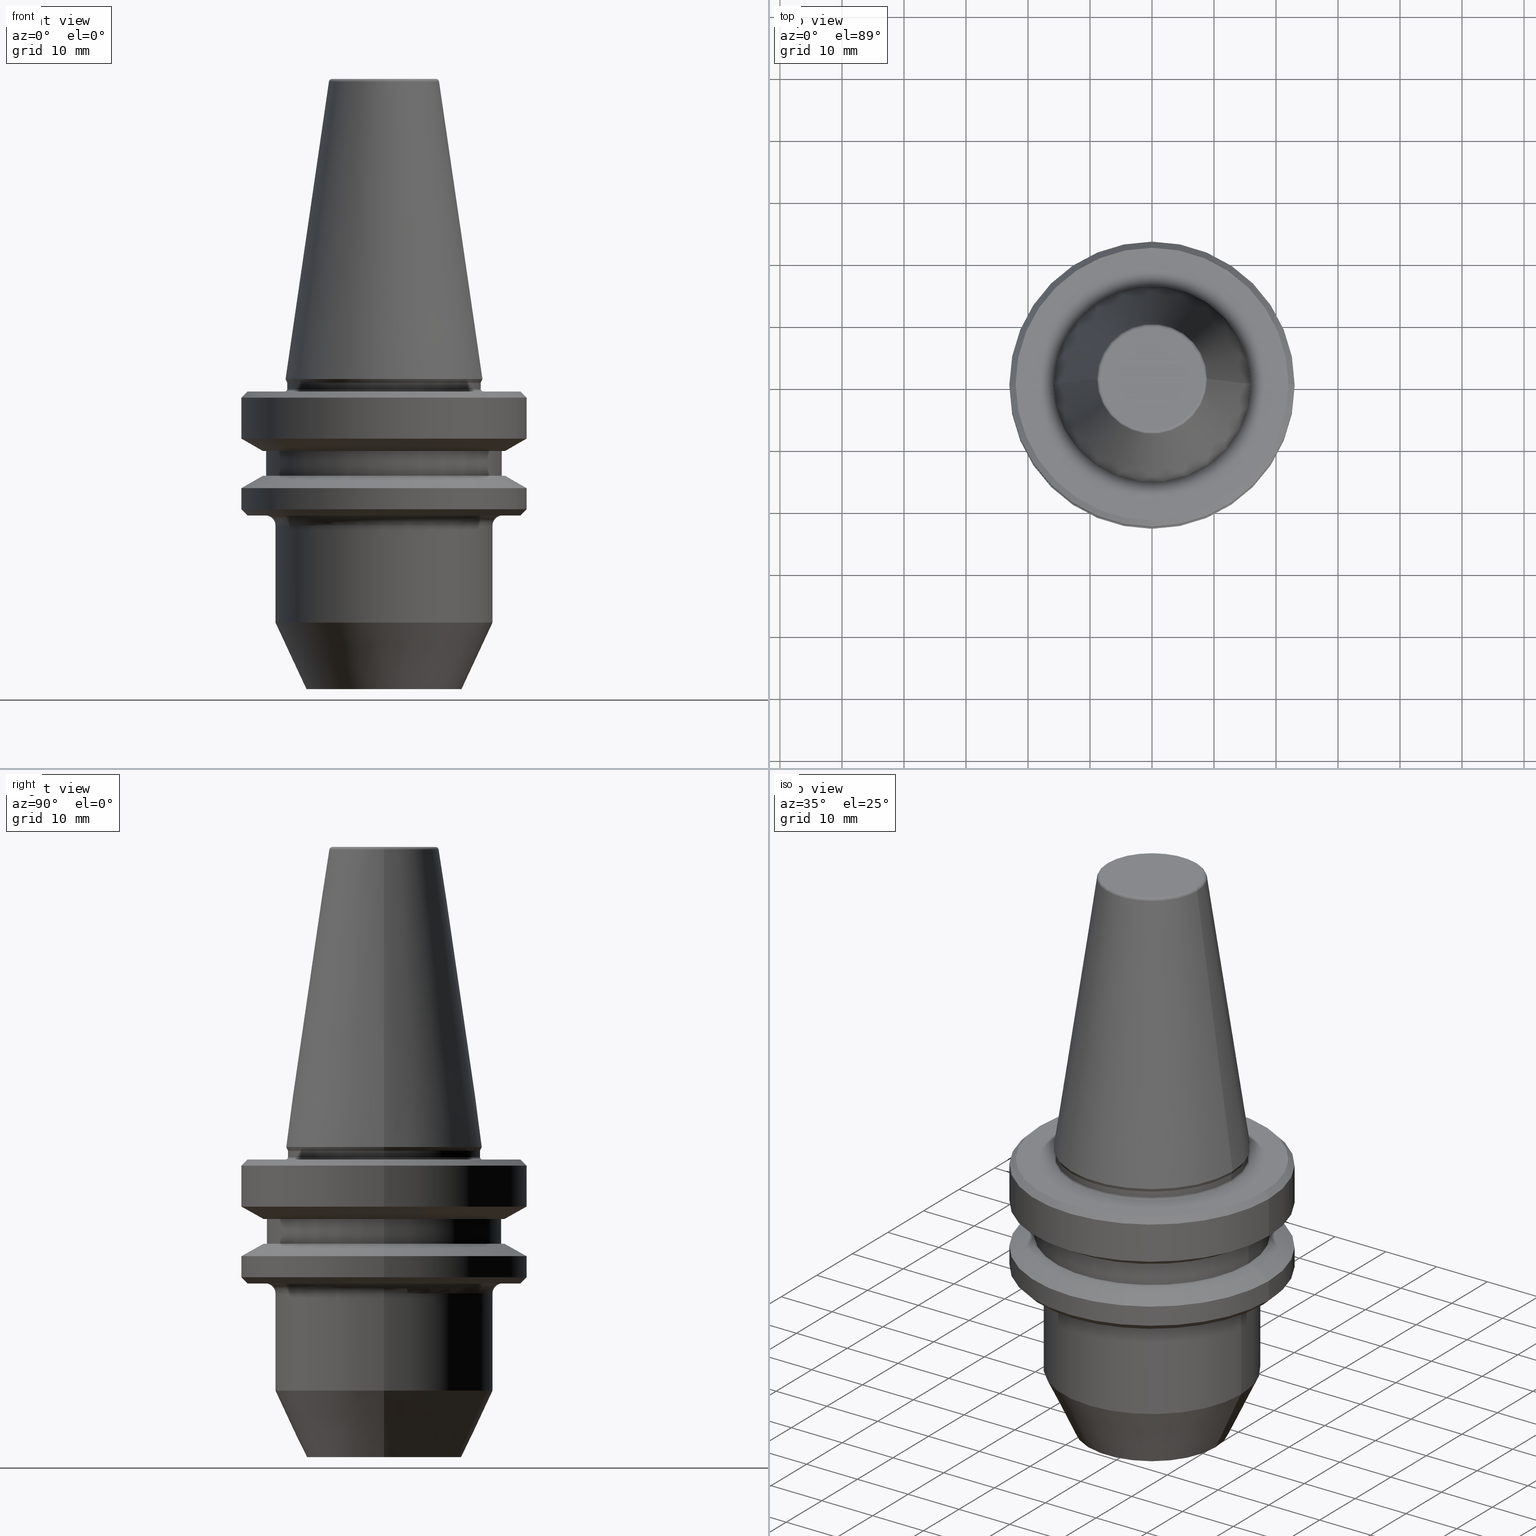
[diagram: canonical four-view strip — front | top / right | iso, engineering-drawing reading convention]
A machine part, canonical four-view strip (front | top / right | iso — engineering-drawing reading convention). The complete STEP part file that produces these views, byte-faithful:
ISO-10303-21;
HEADER;
FILE_DESCRIPTION (( 'STEP AP203' ),
    '1' );
FILE_NAME ('BT30 WE10 050 AD-6.3G15000 SL.STEP',
    '2019-05-22T04:44:00',
    ( '' ),
    ( '' ),
    'SwSTEP 2.0',
    'SolidWorks 2014',
    '' );
FILE_SCHEMA (( 'CONFIG_CONTROL_DESIGN' ));
ENDSEC;

DATA;
#1 = ORIENTED_EDGE ( 'NONE', *, *, #640, .F. ) ;
#2 = CARTESIAN_POINT ( 'NONE',  ( 23.00000000000002100, 0.0000000000000000000, 106.7296997704041000 ) ) ;
#3 = PERSON_AND_ORGANIZATION_ROLE ( 'creator' ) ;
#4 = DATE_AND_TIME ( #205, #403 ) ;
#5 = EDGE_CURVE ( 'NONE', #921, #519, #388, .T. ) ;
#6 = ORIENTED_EDGE ( 'NONE', *, *, #503, .T. ) ;
#7 = DIRECTION ( 'NONE',  ( 0.1443082268834997600, 1.767266081435079900E-017, -0.9895327865481469100 ) ) ;
#8 = ORIENTED_EDGE ( 'NONE', *, *, #460, .F. ) ;
#9 = CARTESIAN_POINT ( 'NONE',  ( 0.0000000000000000000, 0.0000000000000000000, -15.59999999999983600 ) ) ;
#10 = ORIENTED_EDGE ( 'NONE', *, *, #868, .F. ) ;
#11 = CARTESIAN_POINT ( 'NONE',  ( -17.49999999999849000, 2.143131898507683300E-015, 106.7296997704041000 ) ) ;
#12 = EDGE_CURVE ( 'NONE', #570, #492, #775, .T. ) ;
#13 = ORIENTED_EDGE ( 'NONE', *, *, #738, .T. ) ;
#14 = CARTESIAN_POINT ( 'NONE',  ( 19.53610161513785900, 2.604585034559258400E-015, -15.59999999999983600 ) ) ;
#15 = CC_DESIGN_DATE_AND_TIME_ASSIGNMENT ( #872, #360, ( #76 ) ) ;
#16 = CARTESIAN_POINT ( 'NONE',  ( 8.384228427309349000, 0.0000000000000000000, 47.89999999999983500 ) ) ;
#17 = CYLINDRICAL_SURFACE ( 'NONE', #887, 19.00000000000034800 ) ;
#18 = CARTESIAN_POINT ( 'NONE',  ( 0.0000000000000000000, 0.0000000000000000000, 106.7296997704041000 ) ) ;
#19 = EDGE_LOOP ( 'NONE', ( #135, #449 ) ) ;
#20 = CIRCLE ( 'NONE', #256, 16.00000000000056800 ) ;
#21 = ORIENTED_EDGE ( 'NONE', *, *, #185, .F. ) ;
#22 = CARTESIAN_POINT ( 'NONE',  ( 0.0000000000000000000, 0.0000000000000000000, -9.600117335054392200 ) ) ;
#23 = CARTESIAN_POINT ( 'NONE',  ( -22.00000000000002100, 0.0000000000000000000, -1.999999999999779700 ) ) ;
#24 = AXIS2_PLACEMENT_3D ( 'NONE', #520, #212, #108 ) ;
#25 = ADVANCED_FACE ( 'NONE', ( #364, #585 ), #558, .F. ) ;
#26 = LINE ( 'NONE', #722, #762 ) ;
#27 = AXIS2_PLACEMENT_3D ( 'NONE', #753, #988, #219 ) ;
#28 = DIRECTION ( 'NONE',  ( 1.000000000000000000, 0.0000000000000000000, 0.0000000000000000000 ) ) ;
#29 = AXIS2_PLACEMENT_3D ( 'NONE', #16, #439, #152 ) ;
#30 = DIRECTION ( 'NONE',  ( -0.0000000000000000000, -0.0000000000000000000, 1.000000000000000000 ) ) ;
#31 = ADVANCED_FACE ( 'NONE', ( #980 ), #168, .F. ) ;
#32 = VERTEX_POINT ( 'NONE', #415 ) ;
#33 = PERSON_AND_ORGANIZATION ( #305, #501 ) ;
#34 = ORIENTED_EDGE ( 'NONE', *, *, #511, .T. ) ;
#35 = VERTEX_POINT ( 'NONE', #695 ) ;
#36 = ORIENTED_EDGE ( 'NONE', *, *, #547, .T. ) ;
#37 = CARTESIAN_POINT ( 'NONE',  ( 0.0000000000000000000, 0.0000000000000000000, -2.999999999999891600 ) ) ;
#38 = CARTESIAN_POINT ( 'NONE',  ( 0.0000000000000000000, 0.0000000000000000000, 106.7296997704041000 ) ) ;
#39 = ORIENTED_EDGE ( 'NONE', *, *, #183, .T. ) ;
#40 = AXIS2_PLACEMENT_3D ( 'NONE', #664, #136, #28 ) ;
#41 = CARTESIAN_POINT ( 'NONE',  ( -23.00000000000002100, 2.816687638038915100E-015, -17.59988266494549700 ) ) ;
#42 = CARTESIAN_POINT ( 'NONE',  ( 0.0000000000000000000, 0.0000000000000000000, 106.7296997704041000 ) ) ;
#43 = CIRCLE ( 'NONE', #330, 22.00000000000002100 ) ;
#44 = DIRECTION ( 'NONE',  ( -0.4226182617407099300, 5.175581015019787600E-017, 0.9063077870366450500 ) ) ;
#45 = EDGE_CURVE ( 'NONE', #35, #905, #546, .T. ) ;
#46 = TOROIDAL_SURFACE ( 'NONE', #27, 8.384228427309349000, 0.4999999999999575300 ) ;
#47 = CIRCLE ( 'NONE', #708, 15.60000000000028000 ) ;
#48 = CARTESIAN_POINT ( 'NONE',  ( 15.87499999999930700, 0.0000000000000000000, 2.220446049250313100E-013 ) ) ;
#49 = EDGE_CURVE ( 'NONE', #556, #519, #343, .T. ) ;
#50 = AXIS2_PLACEMENT_3D ( 'NONE', #978, #265, #160 ) ;
#51 = DIRECTION ( 'NONE',  ( 0.0000000000000000000, 0.0000000000000000000, -1.000000000000000000 ) ) ;
#52 = VERTEX_POINT ( 'NONE', #366 ) ;
#53 = LOCAL_TIME ( 10, 14, 0.0000000000000000000, #250 ) ;
#54 = EDGE_LOOP ( 'NONE', ( #885, #718, #247, #379 ) ) ;
#55 = AXIS2_PLACEMENT_3D ( 'NONE', #178, #756, #564 ) ;
#56 = ORIENTED_EDGE ( 'NONE', *, *, #868, .T. ) ;
#57 = CARTESIAN_POINT ( 'NONE',  ( 0.0000000000000000000, 0.0000000000000000000, -1.999999999999779700 ) ) ;
#58 = CARTESIAN_POINT ( 'NONE',  ( 0.0000000000000000000, 0.0000000000000000000, -21.99999999999978300 ) ) ;
#59 = ORIENTED_EDGE ( 'NONE', *, *, #997, .F. ) ;
#60 = APPROVAL_STATUS ( 'not_yet_approved' ) ;
#61 = CARTESIAN_POINT ( 'NONE',  ( -8.384228427309349000, 1.026771850682464100E-015, 47.89999999999983500 ) ) ;
#62 = EDGE_CURVE ( 'NONE', #32, #672, #141, .T. ) ;
#63 = DIRECTION ( 'NONE',  ( 1.000000000000000000, 0.0000000000000000000, 0.0000000000000000000 ) ) ;
#64 = ORIENTED_EDGE ( 'NONE', *, *, #977, .F. ) ;
#65 = CARTESIAN_POINT ( 'NONE',  ( 15.60000000000028000, 0.0000000000000000000, 106.7296997704041000 ) ) ;
#66 = DIRECTION ( 'NONE',  ( 0.0000000000000000000, -0.0000000000000000000, 1.000000000000000000 ) ) ;
#67 = DIRECTION ( 'NONE',  ( 1.000000000000000000, 0.0000000000000000000, 0.0000000000000000000 ) ) ;
#68 = EDGE_CURVE ( 'NONE', #91, #189, #720, .T. ) ;
#69 = DIRECTION ( 'NONE',  ( 0.4226182617407099300, 0.0000000000000000000, 0.9063077870366450500 ) ) ;
#70 = VECTOR ( 'NONE', #834, 1000.000000000000000 ) ;
#71 = ORIENTED_EDGE ( 'NONE', *, *, #280, .F. ) ;
#72 = CIRCLE ( 'NONE', #418, 19.53610161513785900 ) ;
#73 = EDGE_LOOP ( 'NONE', ( #340, #39, #288, #784 ) ) ;
#74 = DIRECTION ( 'NONE',  ( -0.0000000000000000000, -0.0000000000000000000, 1.000000000000000000 ) ) ;
#75 = AXIS2_PLACEMENT_3D ( 'NONE', #318, #453, #719 ) ;
#76 = PRODUCT_DEFINITION ( 'UNKNOWN', '', #654, #802 ) ;
#77 = CALENDAR_DATE ( 2019, 22, 5 ) ;
#78 = DIRECTION ( 'NONE',  ( 1.000000000000000000, 0.0000000000000000000, 0.0000000000000000000 ) ) ;
#79 = CARTESIAN_POINT ( 'NONE',  ( 0.0000000000000000000, 0.0000000000000000000, -0.5897394031388891700 ) ) ;
#80 = DIRECTION ( 'NONE',  ( 0.0000000000000000000, 0.0000000000000000000, -1.000000000000000000 ) ) ;
#81 = ORIENTED_EDGE ( 'NONE', *, *, #333, .T. ) ;
#82 = EDGE_CURVE ( 'NONE', #52, #608, #321, .T. ) ;
#83 = DIRECTION ( 'NONE',  ( 0.0000000000000000000, 0.0000000000000000000, -1.000000000000000000 ) ) ;
#84 = EDGE_CURVE ( 'NONE', #782, #529, #913, .T. ) ;
#85 = ADVANCED_FACE ( 'NONE', ( #744 ), #262, .T. ) ;
#86 = VERTEX_POINT ( 'NONE', #355 ) ;
#87 = DIRECTION ( 'NONE',  ( 1.000000000000000000, 0.0000000000000000000, 0.0000000000000000000 ) ) ;
#88 = DIRECTION ( 'NONE',  ( 1.000000000000000000, 0.0000000000000000000, 0.0000000000000000000 ) ) ;
#89 = VERTEX_POINT ( 'NONE', #633 ) ;
#90 = DIRECTION ( 'NONE',  ( 1.000000000000000000, 0.0000000000000000000, 0.0000000000000000000 ) ) ;
#91 = VERTEX_POINT ( 'NONE', #641 ) ;
#92 = DIRECTION ( 'NONE',  ( -1.000000000000000000, 0.0000000000000000000, 0.0000000000000000000 ) ) ;
#93 = DIRECTION ( 'NONE',  ( 0.0000000000000000000, 0.0000000000000000000, -1.000000000000000000 ) ) ;
#94 = CIRCLE ( 'NONE', #116, 19.00000000000034800 ) ;
#95 = CLOSED_SHELL ( 'NONE', ( #161, #814, #201, #806, #705, #85, #777, #875, #638, #113, #770, #631, #31, #938, #883, #400, #398, #351, #890, #490, #472, #622, #232, #25, #311, #192, #550, #467, #766, #773, #175, #701, #314, #326, #235, #729 ) ) ;
#96 = AXIS2_PLACEMENT_3D ( 'NONE', #649, #80, #225 ) ;
#97 = CARTESIAN_POINT ( 'NONE',  ( 0.0000000000000000000, 0.0000000000000000000, 106.7296997704041000 ) ) ;
#98 = CONICAL_SURFACE ( 'NONE', #590, 23.00000000000002100, 0.7853981633973927700 ) ;
#99 = LINE ( 'NONE', #349, #442 ) ;
#100 = ORIENTED_EDGE ( 'NONE', *, *, #145, .T. ) ;
#101 = DATE_AND_TIME ( #298, #504 ) ;
#102 = CYLINDRICAL_SURFACE ( 'NONE', #826, 17.49999999999849000 ) ;
#103 = CC_DESIGN_PERSON_AND_ORGANIZATION_ASSIGNMENT ( #33, #637, ( #654 ) ) ;
#104 = EDGE_LOOP ( 'NONE', ( #163, #253, #656, #740 ) ) ;
#105 = CIRCLE ( 'NONE', #310, 23.00000000000002100 ) ;
#106 = ORIENTED_EDGE ( 'NONE', *, *, #359, .F. ) ;
#107 = AXIS2_PLACEMENT_3D ( 'NONE', #382, #390, #953 ) ;
#108 = DIRECTION ( 'NONE',  ( 1.000000000000000000, 0.0000000000000000000, 0.0000000000000000000 ) ) ;
#109 = VERTEX_POINT ( 'NONE', #530 ) ;
#110 = AXIS2_PLACEMENT_3D ( 'NONE', #899, #457, #576 ) ;
#111 = DIRECTION ( 'NONE',  ( -0.0000000000000000000, -0.0000000000000000000, 1.000000000000000000 ) ) ;
#112 = VERTEX_POINT ( 'NONE', #969 ) ;
#113 = ADVANCED_FACE ( 'NONE', ( #677 ), #866, .T. ) ;
#114 = CARTESIAN_POINT ( 'NONE',  ( -23.00000000000002100, 0.0000000000000000000, -2.999999999999891600 ) ) ;
#115 = VECTOR ( 'NONE', #371, 1000.000000000000000 ) ;
#116 = AXIS2_PLACEMENT_3D ( 'NONE', #9, #888, #396 ) ;
#117 = FACE_OUTER_BOUND ( 'NONE', #543, .T. ) ;
#118 = UNCERTAINTY_MEASURE_WITH_UNIT (LENGTH_MEASURE( 1.000000000000000100E-005 ), #469, 'distance_accuracy_value', 'NONE');
#119 = FACE_OUTER_BOUND ( 'NONE', #481, .T. ) ;
#120 = ORIENTED_EDGE ( 'NONE', *, *, #428, .F. ) ;
#121 = CARTESIAN_POINT ( 'NONE',  ( 0.0000000000000000000, 12.49999999999862300, -49.99999999999982200 ) ) ;
#122 = PERSON_AND_ORGANIZATION ( #305, #501 ) ;
#123 = CONICAL_SURFACE ( 'NONE', #131, 12.49999999999862300, 0.4363323129985939900 ) ;
#124 = ORIENTED_EDGE ( 'NONE', *, *, #511, .F. ) ;
#125 = DIRECTION ( 'NONE',  ( 1.224646799147353200E-016, 1.000000000000000000, 0.0000000000000000000 ) ) ;
#126 = DIRECTION ( 'NONE',  ( 0.8660254037844363800, 0.0000000000000000000, 0.5000000000000041100 ) ) ;
#127 = EDGE_CURVE ( 'NONE', #529, #608, #496, .T. ) ;
#128 = VERTEX_POINT ( 'NONE', #450 ) ;
#129 = FACE_BOUND ( 'NONE', #670, .T. ) ;
#130 = AXIS2_PLACEMENT_3D ( 'NONE', #444, #615, #935 ) ;
#131 = AXIS2_PLACEMENT_3D ( 'NONE', #352, #785, #416 ) ;
#132 = ORIENTED_EDGE ( 'NONE', *, *, #151, .T. ) ;
#133 = EDGE_CURVE ( 'NONE', #519, #392, #889, .T. ) ;
#134 = CARTESIAN_POINT ( 'NONE',  ( -19.53610161513907800, 2.604585034559332900E-015, -11.59999999999938900 ) ) ;
#135 = ORIENTED_EDGE ( 'NONE', *, *, #373, .T. ) ;
#136 = DIRECTION ( 'NONE',  ( -0.0000000000000000000, -0.0000000000000000000, 1.000000000000000000 ) ) ;
#137 = AXIS2_PLACEMENT_3D ( 'NONE', #538, #30, #632 ) ;
#138 = DIRECTION ( 'NONE',  ( -0.0000000000000000000, -0.0000000000000000000, 1.000000000000000000 ) ) ;
#139 = CARTESIAN_POINT ( 'NONE',  ( 0.0000000000000000000, 0.0000000000000000000, -21.99999999999978300 ) ) ;
#140 = PLANE ( 'NONE',  #966 ) ;
#141 = LINE ( 'NONE', #11, #518 ) ;
#142 = DIRECTION ( 'NONE',  ( 0.7071067811865474600, 0.0000000000000000000, 0.7071067811865475700 ) ) ;
#143 = TOROIDAL_SURFACE ( 'NONE', #167, 16.00000000000068200, 0.4000000000000669700 ) ;
#144 = LINE ( 'NONE', #208, #726 ) ;
#145 = EDGE_CURVE ( 'NONE', #276, #32, #470, .T. ) ;
#146 = CARTESIAN_POINT ( 'NONE',  ( 22.00000000000002100, 2.755455298081547100E-015, -1.999999999999779700 ) ) ;
#147 = ORIENTED_EDGE ( 'NONE', *, *, #614, .F. ) ;
#148 = DIRECTION ( 'NONE',  ( -0.0000000000000000000, -0.0000000000000000000, 1.000000000000000000 ) ) ;
#149 = DIRECTION ( 'NONE',  ( -0.0000000000000000000, -0.0000000000000000000, 1.000000000000000000 ) ) ;
#150 = FACE_OUTER_BOUND ( 'NONE', #704, .T. ) ;
#151 = EDGE_CURVE ( 'NONE', #209, #497, #94, .T. ) ;
#152 = DIRECTION ( 'NONE',  ( 0.0000000000000000000, 0.0000000000000000000, -1.000000000000000000 ) ) ;
#153 = EDGE_CURVE ( 'NONE', #35, #639, #440, .T. ) ;
#154 = EDGE_LOOP ( 'NONE', ( #808, #697, #329, #173 ) ) ;
#155 = CC_DESIGN_PERSON_AND_ORGANIZATION_ASSIGNMENT ( #295, #487, ( #625 ) ) ;
#156 = DIRECTION ( 'NONE',  ( -0.8660254037844404800, 0.0000000000000000000, -0.4999999999999967800 ) ) ;
#157 = FACE_OUTER_BOUND ( 'NONE', #742, .T. ) ;
#158 = DIRECTION ( 'NONE',  ( 0.0000000000000000000, 0.0000000000000000000, -1.000000000000000000 ) ) ;
#159 = DIRECTION ( 'NONE',  ( -0.0000000000000000000, -0.0000000000000000000, 1.000000000000000000 ) ) ;
#160 = DIRECTION ( 'NONE',  ( 1.000000000000000000, 0.0000000000000000000, 0.0000000000000000000 ) ) ;
#161 = ADVANCED_FACE ( 'NONE', ( #290 ), #46, .T. ) ;
#162 = ORIENTED_EDGE ( 'NONE', *, *, #503, .F. ) ;
#163 = ORIENTED_EDGE ( 'NONE', *, *, #49, .F. ) ;
#164 = DIRECTION ( 'NONE',  ( -0.0000000000000000000, -0.0000000000000000000, 1.000000000000000000 ) ) ;
#165 = DIRECTION ( 'NONE',  ( -0.0000000000000000000, -0.0000000000000000000, 1.000000000000000000 ) ) ;
#166 = AXIS2_PLACEMENT_3D ( 'NONE', #58, #581, #386 ) ;
#167 = AXIS2_PLACEMENT_3D ( 'NONE', #884, #273, #591 ) ;
#168 = TOROIDAL_SURFACE ( 'NONE', #645, 19.09999999999845200, 1.599999999999990300 ) ;
#169 = FACE_OUTER_BOUND ( 'NONE', #933, .T. ) ;
#170 = EDGE_LOOP ( 'NONE', ( #629, #279, #34, #404 ) ) ;
#171 = CIRCLE ( 'NONE', #226, 19.00000000000034800 ) ;
#172 = EDGE_CURVE ( 'NONE', #878, #206, #243, .T. ) ;
#173 = ORIENTED_EDGE ( 'NONE', *, *, #962, .F. ) ;
#174 = DIRECTION ( 'NONE',  ( -0.0000000000000000000, -0.0000000000000000000, 1.000000000000000000 ) ) ;
#175 = ADVANCED_FACE ( 'NONE', ( #843 ), #434, .F. ) ;
#176 = PERSON_AND_ORGANIZATION_ROLE ( 'classification_officer' ) ;
#177 = AXIS2_PLACEMENT_3D ( 'NONE', #870, #268, #228 ) ;
#178 = CARTESIAN_POINT ( 'NONE',  ( 0.0000000000000000000, 0.0000000000000000000, -23.59999999999983100 ) ) ;
#179 = VECTOR ( 'NONE', #126, 1000.000000000000000 ) ;
#180 = APPROVAL_STATUS ( 'not_yet_approved' ) ;
#181 = EDGE_CURVE ( 'NONE', #529, #782, #43, .T. ) ;
#182 = FACE_OUTER_BOUND ( 'NONE', #154, .T. ) ;
#183 = EDGE_CURVE ( 'NONE', #276, #204, #835, .T. ) ;
#184 = CARTESIAN_POINT ( 'NONE',  ( 0.0000000000000000000, 0.0000000000000000000, -21.99999999999978300 ) ) ;
#185 = EDGE_CURVE ( 'NONE', #91, #684, #237, .T. ) ;
#186 = LOCAL_TIME ( 10, 14, 0.0000000000000000000, #380 ) ;
#187 = ORIENTED_EDGE ( 'NONE', *, *, #499, .T. ) ;
#188 = APPROVAL ( #60, 'UNSPECIFIED' ) ;
#189 = VERTEX_POINT ( 'NONE', #562 ) ;
#190 = VECTOR ( 'NONE', #646, 1000.000000000000100 ) ;
#191 = AXIS2_PLACEMENT_3D ( 'NONE', #737, #735, #799 ) ;
#192 = ADVANCED_FACE ( 'NONE', ( #216, #619 ), #140, .F. ) ;
#193 = LINE ( 'NONE', #417, #551 ) ;
#194 = ORIENTED_EDGE ( 'NONE', *, *, #623, .T. ) ;
#195 = FACE_OUTER_BOUND ( 'NONE', #369, .T. ) ;
#196 = ORIENTED_EDGE ( 'NONE', *, *, #359, .T. ) ;
#197 = CARTESIAN_POINT ( 'NONE',  ( -19.09999999999845200, 2.339075386371255000E-015, -23.59999999999984500 ) ) ;
#198 = DIRECTION ( 'NONE',  ( -0.0000000000000000000, -0.0000000000000000000, 1.000000000000000000 ) ) ;
#199 = EDGE_CURVE ( 'NONE', #712, #672, #411, .T. ) ;
#200 = DIRECTION ( 'NONE',  ( -1.000000000000000000, 0.0000000000000000000, -0.0000000000000000000 ) ) ;
#201 = ADVANCED_FACE ( 'NONE', ( #588 ), #569, .T. ) ;
#202 = CIRCLE ( 'NONE', #895, 17.49999999999851500 ) ;
#203 = CARTESIAN_POINT ( 'NONE',  ( -16.00000000000068200, 1.959434878635848800E-015, -1.600000000000045800 ) ) ;
#204 = VERTEX_POINT ( 'NONE', #816 ) ;
#205 = CALENDAR_DATE ( 2019, 22, 5 ) ;
#206 = VERTEX_POINT ( 'NONE', #652 ) ;
#207 = EDGE_CURVE ( 'NONE', #426, #309, #368, .T. ) ;
#208 = CARTESIAN_POINT ( 'NONE',  ( 15.60000000000028000, 0.0000000000000000000, -0.5897394031388891700 ) ) ;
#209 = VERTEX_POINT ( 'NONE', #395 ) ;
#210 = ORIENTED_EDGE ( 'NONE', *, *, #859, .T. ) ;
#211 = ORIENTED_EDGE ( 'NONE', *, *, #365, .F. ) ;
#212 = DIRECTION ( 'NONE',  ( -0.0000000000000000000, -0.0000000000000000000, 1.000000000000000000 ) ) ;
#213 = CARTESIAN_POINT ( 'NONE',  ( 0.0000000000000000000, 8.384228427309237100, 48.39999999999999900 ) ) ;
#214 = FACE_OUTER_BOUND ( 'NONE', #297, .T. ) ;
#215 = AXIS2_PLACEMENT_3D ( 'NONE', #245, #158, #429 ) ;
#216 = FACE_OUTER_BOUND ( 'NONE', #876, .T. ) ;
#217 = EDGE_LOOP ( 'NONE', ( #412, #863, #974, #502 ) ) ;
#218 = DIRECTION ( 'NONE',  ( -0.0000000000000000000, -0.0000000000000000000, 1.000000000000000000 ) ) ;
#219 = DIRECTION ( 'NONE',  ( 1.000000000000000000, 0.0000000000000000000, 0.0000000000000000000 ) ) ;
#220 = CARTESIAN_POINT ( 'NONE',  ( -12.49999999999862300, 1.836970198720854900E-015, -49.99999999999980800 ) ) ;
#221 = CARTESIAN_POINT ( 'NONE',  ( 19.53610161513907800, 0.0000000000000000000, -11.59999999999938900 ) ) ;
#222 = DIRECTION ( 'NONE',  ( -0.0000000000000000000, -0.0000000000000000000, 1.000000000000000000 ) ) ;
#223 = CIRCLE ( 'NONE', #130, 19.53610161513785900 ) ;
#224 = EDGE_CURVE ( 'NONE', #960, #231, #20, .T. ) ;
#225 = DIRECTION ( 'NONE',  ( -1.000000000000000000, 0.0000000000000000000, 0.0000000000000000000 ) ) ;
#226 = AXIS2_PLACEMENT_3D ( 'NONE', #482, #537, #240 ) ;
#227 = ORIENTED_EDGE ( 'NONE', *, *, #427, .F. ) ;
#228 = DIRECTION ( 'NONE',  ( 1.000000000000000000, 0.0000000000000000000, 0.0000000000000000000 ) ) ;
#229 = PERSON_AND_ORGANIZATION ( #305, #501 ) ;
#230 = CARTESIAN_POINT ( 'NONE',  ( -17.49999999999846200, 2.143131898507681700E-015, -23.59999999999983100 ) ) ;
#231 = VERTEX_POINT ( 'NONE', #993 ) ;
#232 = ADVANCED_FACE ( 'NONE', ( #783 ), #750, .T. ) ;
#233 = ORIENTED_EDGE ( 'NONE', *, *, #62, .F. ) ;
#234 = EDGE_CURVE ( 'NONE', #497, #734, #956, .T. ) ;
#235 = ADVANCED_FACE ( 'NONE', ( #195 ), #812, .T. ) ;
#236 = EDGE_LOOP ( 'NONE', ( #120, #425, #540, #59 ) ) ;
#237 = CIRCLE ( 'NONE', #979, 15.60000000000028000 ) ;
#238 = AXIS2_PLACEMENT_3D ( 'NONE', #612, #838, #982 ) ;
#239 = DIRECTION ( 'NONE',  ( 0.0000000000000000000, 0.0000000000000000000, -1.000000000000000000 ) ) ;
#240 = DIRECTION ( 'NONE',  ( 1.000000000000000000, 0.0000000000000000000, 0.0000000000000000000 ) ) ;
#241 = DIRECTION ( 'NONE',  ( -0.7071067811865474600, 8.659560562354931600E-017, 0.7071067811865475700 ) ) ;
#242 = AXIS2_PLACEMENT_3D ( 'NONE', #765, #306, #749 ) ;
#243 = LINE ( 'NONE', #611, #642 ) ;
#244 = LINE ( 'NONE', #512, #628 ) ;
#245 = CARTESIAN_POINT ( 'NONE',  ( 0.0000000000000000000, 22.00000000000002100, -1.999999999999946300 ) ) ;
#246 = AXIS2_PLACEMENT_3D ( 'NONE', #42, #174, #461 ) ;
#247 = ORIENTED_EDGE ( 'NONE', *, *, #271, .T. ) ;
#248 = AXIS2_PLACEMENT_3D ( 'NONE', #1000, #83, #892 ) ;
#249 = DIRECTION ( 'NONE',  ( 1.000000000000000000, 0.0000000000000000000, 0.0000000000000000000 ) ) ;
#250 = COORDINATED_UNIVERSAL_TIME_OFFSET ( 5, 30, .AHEAD. ) ;
#251 = ORIENTED_EDGE ( 'NONE', *, *, #347, .F. ) ;
#252 = PRODUCT_RELATED_PRODUCT_CATEGORY ( 'detail', '', ( #625 ) ) ;
#253 = ORIENTED_EDGE ( 'NONE', *, *, #796, .T. ) ;
#254 = DIRECTION ( 'NONE',  ( -0.0000000000000000000, -0.0000000000000000000, 1.000000000000000000 ) ) ;
#255 = CARTESIAN_POINT ( 'NONE',  ( 0.0000000000000000000, 0.0000000000000000000, 106.7296997704041000 ) ) ;
#256 = AXIS2_PLACEMENT_3D ( 'NONE', #332, #803, #864 ) ;
#257 = ORIENTED_EDGE ( 'NONE', *, *, #234, .T. ) ;
#258 = SECURITY_CLASSIFICATION ( '', '', #316 ) ;
#259 = DIRECTION ( 'NONE',  ( 1.000000000000000000, 0.0000000000000000000, 0.0000000000000000000 ) ) ;
#260 = DIRECTION ( 'NONE',  ( 0.0000000000000000000, -0.0000000000000000000, 1.000000000000000000 ) ) ;
#261 = EDGE_CURVE ( 'NONE', #89, #712, #986, .T. ) ;
#262 = CONICAL_SURFACE ( 'NONE', #747, 23.00000000000002100, 0.7853981633973927700 ) ;
#263 = AXIS2_PLACEMENT_3D ( 'NONE', #904, #165, #486 ) ;
#264 = DIRECTION ( 'NONE',  ( 1.000000000000000000, 0.0000000000000000000, 0.0000000000000000000 ) ) ;
#265 = DIRECTION ( 'NONE',  ( -0.0000000000000000000, -0.0000000000000000000, 1.000000000000000000 ) ) ;
#266 = CYLINDRICAL_SURFACE ( 'NONE', #246, 23.00000000000002100 ) ;
#267 = ORIENTED_EDGE ( 'NONE', *, *, #271, .F. ) ;
#268 = DIRECTION ( 'NONE',  ( -0.0000000000000000000, -0.0000000000000000000, 1.000000000000000000 ) ) ;
#269 = DIRECTION ( 'NONE',  ( -0.0000000000000000000, -0.0000000000000000000, 1.000000000000000000 ) ) ;
#270 = LOCAL_TIME ( 10, 14, 0.0000000000000000000, #479 ) ;
#271 = EDGE_CURVE ( 'NONE', #608, #206, #552, .T. ) ;
#272 = CIRCLE ( 'NONE', #915, 23.00000000000002100 ) ;
#273 = DIRECTION ( 'NONE',  ( -0.0000000000000000000, -0.0000000000000000000, 1.000000000000000000 ) ) ;
#274 = DIRECTION ( 'NONE',  ( 1.000000000000000000, 0.0000000000000000000, 0.0000000000000000000 ) ) ;
#275 = ORIENTED_EDGE ( 'NONE', *, *, #738, .F. ) ;
#276 = VERTEX_POINT ( 'NONE', #220 ) ;
#277 = CARTESIAN_POINT ( 'NONE',  ( 0.0000000000000000000, 0.0000000000000000000, -17.59988266494549700 ) ) ;
#278 = APPROVAL ( #819, 'UNSPECIFIED' ) ;
#279 = ORIENTED_EDGE ( 'NONE', *, *, #199, .T. ) ;
#280 = EDGE_CURVE ( 'NONE', #497, #209, #171, .T. ) ;
#281 = DIRECTION ( 'NONE',  ( -0.0000000000000000000, -0.0000000000000000000, 1.000000000000000000 ) ) ;
#282 = DIRECTION ( 'NONE',  ( -0.0000000000000000000, -0.0000000000000000000, 1.000000000000000000 ) ) ;
#283 = CARTESIAN_POINT ( 'NONE',  ( 0.0000000000000000000, 0.0000000000000000000, 47.89999999999983500 ) ) ;
#284 = DIRECTION ( 'NONE',  ( -0.0000000000000000000, -0.0000000000000000000, 1.000000000000000000 ) ) ;
#285 = EDGE_LOOP ( 'NONE', ( #227, #132, #257, #458 ) ) ;
#286 = DIRECTION ( 'NONE',  ( -0.0000000000000000000, -0.0000000000000000000, 1.000000000000000000 ) ) ;
#287 = AXIS2_PLACEMENT_3D ( 'NONE', #255, #994, #438 ) ;
#288 = ORIENTED_EDGE ( 'NONE', *, *, #694, .T. ) ;
#289 = CARTESIAN_POINT ( 'NONE',  ( 23.00000000000002100, 0.0000000000000000000, 106.7296997704041000 ) ) ;
#290 = FACE_OUTER_BOUND ( 'NONE', #975, .T. ) ;
#291 = CARTESIAN_POINT ( 'NONE',  ( 19.00000000000034800, 0.0000000000000000000, -11.59999999999938900 ) ) ;
#292 = CARTESIAN_POINT ( 'NONE',  ( -19.00000000000034800, 2.326828918380014000E-015, -11.59999999999938900 ) ) ;
#293 = FACE_BOUND ( 'NONE', #910, .T. ) ;
#294 = EDGE_CURVE ( 'NONE', #189, #392, #144, .T. ) ;
#295 = PERSON_AND_ORGANIZATION ( #305, #501 ) ;
#296 = CARTESIAN_POINT ( 'NONE',  ( -23.00000000000002100, 2.816687638038915100E-015, -20.99999999999989300 ) ) ;
#297 = EDGE_LOOP ( 'NONE', ( #721, #483, #64, #949 ) ) ;
#298 = CALENDAR_DATE ( 2019, 22, 5 ) ;
#299 = LINE ( 'NONE', #707, #480 ) ;
#300 = DIRECTION ( 'NONE',  ( -0.0000000000000000000, -0.0000000000000000000, 1.000000000000000000 ) ) ;
#301 = EDGE_CURVE ( 'NONE', #91, #960, #942, .T. ) ;
#302 = CARTESIAN_POINT ( 'NONE',  ( -15.87499999999930700, 0.0000000000000000000, 2.220446049250313100E-013 ) ) ;
#303 = VERTEX_POINT ( 'NONE', #292 ) ;
#304 = FACE_OUTER_BOUND ( 'NONE', #357, .T. ) ;
#305 = PERSON ( 'UNSPECIFIED', 'UNSPECIFIED', 'UNSPECIFIED', ('UNSPECIFIED'), ('UNSPECIFIED'), ('UNSPECIFIED') ) ;
#306 = DIRECTION ( 'NONE',  ( -0.0000000000000000000, -0.0000000000000000000, 1.000000000000000000 ) ) ;
#307 = CARTESIAN_POINT ( 'NONE',  ( 0.0000000000000000000, 0.0000000000000000000, -23.59999999999984500 ) ) ;
#308 = DIRECTION ( 'NONE',  ( 1.000000000000000000, 0.0000000000000000000, 0.0000000000000000000 ) ) ;
#309 = VERTEX_POINT ( 'NONE', #41 ) ;
#310 = AXIS2_PLACEMENT_3D ( 'NONE', #1001, #281, #456 ) ;
#311 = ADVANCED_FACE ( 'NONE', ( #919 ), #703, .T. ) ;
#312 = CARTESIAN_POINT ( 'NONE',  ( 0.0000000000000000000, 0.0000000000000000000, 0.0000000000000000000 ) ) ;
#313 = CARTESIAN_POINT ( 'NONE',  ( -22.00000000000013100, 2.755455298081553800E-015, -21.99999999999978300 ) ) ;
#314 = ADVANCED_FACE ( 'NONE', ( #345 ), #893, .T. ) ;
#315 = ORIENTED_EDGE ( 'NONE', *, *, #640, .T. ) ;
#316 = SECURITY_CLASSIFICATION_LEVEL ( 'unclassified' ) ;
#317 = ORIENTED_EDGE ( 'NONE', *, *, #234, .F. ) ;
#318 = CARTESIAN_POINT ( 'NONE',  ( 19.09999999999845200, 0.0000000000000000000, -23.59999999999984500 ) ) ;
#319 = CC_DESIGN_DATE_AND_TIME_ASSIGNMENT ( #4, #445, ( #258 ) ) ;
#320 = APPLICATION_CONTEXT ( 'configuration controlled 3d designs of mechanical parts and assemblies' ) ;
#321 = LINE ( 'NONE', #2, #698 ) ;
#322 = CIRCLE ( 'NONE', #516, 0.4999999999999570900 ) ;
#323 = CIRCLE ( 'NONE', #667, 17.49999999999846200 ) ;
#324 = ORIENTED_EDGE ( 'NONE', *, *, #301, .T. ) ;
#325 = AXIS2_PLACEMENT_3D ( 'NONE', #377, #597, #534 ) ;
#326 = ADVANCED_FACE ( 'NONE', ( #119 ), #476, .T. ) ;
#327 = CIRCLE ( 'NONE', #191, 15.87499999999930700 ) ;
#328 = AXIS2_PLACEMENT_3D ( 'NONE', #474, #676, #792 ) ;
#329 = ORIENTED_EDGE ( 'NONE', *, *, #82, .T. ) ;
#330 = AXIS2_PLACEMENT_3D ( 'NONE', #57, #976, #67 ) ;
#331 = CIRCLE ( 'NONE', #55, 17.49999999999846200 ) ;
#332 = CARTESIAN_POINT ( 'NONE',  ( 0.0000000000000000000, 0.0000000000000000000, -2.000000000000112800 ) ) ;
#333 = EDGE_CURVE ( 'NONE', #712, #89, #683, .T. ) ;
#334 = ORIENTED_EDGE ( 'NONE', *, *, #465, .F. ) ;
#335 = DIRECTION ( 'NONE',  ( 0.0000000000000000000, 0.0000000000000000000, -1.000000000000000000 ) ) ;
#336 = ORIENTED_EDGE ( 'NONE', *, *, #133, .T. ) ;
#337 = CARTESIAN_POINT ( 'NONE',  ( 0.0000000000000000000, 0.0000000000000000000, -20.99999999999989300 ) ) ;
#338 = DIRECTION ( 'NONE',  ( 1.000000000000000000, 0.0000000000000000000, 0.0000000000000000000 ) ) ;
#339 = DIRECTION ( 'NONE',  ( -0.0000000000000000000, -0.0000000000000000000, 1.000000000000000000 ) ) ;
#340 = ORIENTED_EDGE ( 'NONE', *, *, #145, .F. ) ;
#341 = AXIS2_PLACEMENT_3D ( 'NONE', #874, #515, #264 ) ;
#342 = CARTESIAN_POINT ( 'NONE',  ( 15.87499999999930700, 1.944126793646338400E-015, 2.220446049250313100E-013 ) ) ;
#343 = LINE ( 'NONE', #592, #936 ) ;
#344 = FACE_OUTER_BOUND ( 'NONE', #798, .T. ) ;
#345 = FACE_OUTER_BOUND ( 'NONE', #104, .T. ) ;
#346 = ORIENTED_EDGE ( 'NONE', *, *, #414, .F. ) ;
#347 = EDGE_CURVE ( 'NONE', #492, #672, #323, .T. ) ;
#348 = AXIS2_PLACEMENT_3D ( 'NONE', #448, #335, #92 ) ;
#349 = CARTESIAN_POINT ( 'NONE',  ( -19.53610161513907800, 2.392482431079750700E-015, -11.59999999999938900 ) ) ;
#350 = VECTOR ( 'NONE', #156, 1000.000000000000100 ) ;
#351 = ADVANCED_FACE ( 'NONE', ( #523 ), #651, .T. ) ;
#352 = CARTESIAN_POINT ( 'NONE',  ( 0.0000000000000000000, 0.0000000000000000000, -49.99999999999980800 ) ) ;
#353 = ORIENTED_EDGE ( 'NONE', *, *, #280, .T. ) ;
#354 = CIRCLE ( 'NONE', #75, 1.599999999999990300 ) ;
#355 = CARTESIAN_POINT ( 'NONE',  ( 8.878994820583395500, 1.515745026156838400E-015, 47.97215411344146900 ) ) ;
#356 = DIRECTION ( 'NONE',  ( 0.8660254037844404800, 1.060575238724909000E-016, -0.4999999999999967800 ) ) ;
#357 = EDGE_LOOP ( 'NONE', ( #106, #836, #655, #906 ) ) ;
#358 = ORIENTED_EDGE ( 'NONE', *, *, #460, .T. ) ;
#359 = EDGE_CURVE ( 'NONE', #385, #878, #99, .T. ) ;
#360 = DATE_TIME_ROLE ( 'creation_date' ) ;
#361 = DIRECTION ( 'NONE',  ( -0.0000000000000000000, -0.0000000000000000000, 1.000000000000000000 ) ) ;
#362 = EDGE_CURVE ( 'NONE', #189, #556, #47, .T. ) ;
#363 = AXIS2_PLACEMENT_3D ( 'NONE', #965, #643, #544 ) ;
#364 = FACE_BOUND ( 'NONE', #407, .T. ) ;
#365 = EDGE_CURVE ( 'NONE', #902, #309, #244, .T. ) ;
#366 = CARTESIAN_POINT ( 'NONE',  ( 23.00000000000002100, 0.0000000000000000000, -9.600117335054392200 ) ) ;
#367 = FACE_OUTER_BOUND ( 'NONE', #589, .T. ) ;
#368 = CIRCLE ( 'NONE', #706, 23.00000000000002100 ) ;
#369 = EDGE_LOOP ( 'NONE', ( #275, #908, #832, #985 ) ) ;
#370 = CARTESIAN_POINT ( 'NONE',  ( 23.00000000000002100, 0.0000000000000000000, -17.59988266494549700 ) ) ;
#371 = DIRECTION ( 'NONE',  ( -0.0000000000000000000, -0.0000000000000000000, 1.000000000000000000 ) ) ;
#372 = CIRCLE ( 'NONE', #566, 17.49999999999851500 ) ;
#373 = EDGE_CURVE ( 'NONE', #882, #663, #223, .T. ) ;
#374 = DIRECTION ( 'NONE',  ( 1.000000000000000000, 0.0000000000000000000, 0.0000000000000000000 ) ) ;
#375 = DIRECTION ( 'NONE',  ( -0.0000000000000000000, -0.0000000000000000000, 1.000000000000000000 ) ) ;
#376 = VECTOR ( 'NONE', #254, 1000.000000000000000 ) ;
#377 = CARTESIAN_POINT ( 'NONE',  ( 0.0000000000000000000, 0.0000000000000000000, 48.39999999999977800 ) ) ;
#378 = PLANE ( 'NONE',  #215 ) ;
#379 = ORIENTED_EDGE ( 'NONE', *, *, #493, .F. ) ;
#380 = COORDINATED_UNIVERSAL_TIME_OFFSET ( 5, 30, .AHEAD. ) ;
#381 = ORIENTED_EDGE ( 'NONE', *, *, #900, .F. ) ;
#382 = CARTESIAN_POINT ( 'NONE',  ( 0.0000000000000000000, 0.0000000000000000000, -17.59988266494549700 ) ) ;
#383 = DIRECTION ( 'NONE',  ( 1.000000000000000000, 0.0000000000000000000, 0.0000000000000000000 ) ) ;
#384 = ORIENTED_EDGE ( 'NONE', *, *, #373, .F. ) ;
#385 = VERTEX_POINT ( 'NONE', #134 ) ;
#386 = DIRECTION ( 'NONE',  ( 1.000000000000000000, 0.0000000000000000000, 0.0000000000000000000 ) ) ;
#387 = DIRECTION ( 'NONE',  ( -0.0000000000000000000, -0.0000000000000000000, 1.000000000000000000 ) ) ;
#388 = LINE ( 'NONE', #302, #190 ) ;
#389 = AXIS2_PLACEMENT_3D ( 'NONE', #139, #662, #759 ) ;
#390 = DIRECTION ( 'NONE',  ( 0.0000000000000000000, 0.0000000000000000000, -1.000000000000000000 ) ) ;
#391 = FACE_OUTER_BOUND ( 'NONE', #850, .T. ) ;
#392 = VERTEX_POINT ( 'NONE', #48 ) ;
#393 = VECTOR ( 'NONE', #405, 1000.000000000000000 ) ;
#394 = ORIENTED_EDGE ( 'NONE', *, *, #797, .F. ) ;
#395 = CARTESIAN_POINT ( 'NONE',  ( -19.00000000000034800, 2.326828918380014000E-015, -15.59999999999983600 ) ) ;
#396 = DIRECTION ( 'NONE',  ( 1.000000000000000000, 0.0000000000000000000, 0.0000000000000000000 ) ) ;
#397 = CC_DESIGN_PERSON_AND_ORGANIZATION_ASSIGNMENT ( #688, #466, ( #76 ) ) ;
#398 = ADVANCED_FACE ( 'NONE', ( #846 ), #998, .T. ) ;
#399 = CIRCLE ( 'NONE', #50, 16.00000000000056800 ) ;
#400 = ADVANCED_FACE ( 'NONE', ( #420 ), #489, .F. ) ;
#401 = EDGE_CURVE ( 'NONE', #32, #570, #202, .T. ) ;
#402 = ORIENTED_EDGE ( 'NONE', *, *, #815, .T. ) ;
#403 = LOCAL_TIME ( 10, 14, 0.0000000000000000000, #607 ) ;
#404 = ORIENTED_EDGE ( 'NONE', *, *, #541, .F. ) ;
#405 = DIRECTION ( 'NONE',  ( -0.0000000000000000000, -0.0000000000000000000, 1.000000000000000000 ) ) ;
#406 = ORIENTED_EDGE ( 'NONE', *, *, #49, .T. ) ;
#407 = EDGE_LOOP ( 'NONE', ( #71, #894 ) ) ;
#408 = DIRECTION ( 'NONE',  ( 0.0000000000000000000, 0.0000000000000000000, 1.000000000000000000 ) ) ;
#409 = CIRCLE ( 'NONE', #671, 8.878994820583395500 ) ;
#410 = ORIENTED_EDGE ( 'NONE', *, *, #877, .T. ) ;
#411 = CIRCLE ( 'NONE', #879, 1.599999999999990300 ) ;
#412 = ORIENTED_EDGE ( 'NONE', *, *, #185, .T. ) ;
#413 = APPROVAL_ROLE ( '' ) ;
#414 = EDGE_CURVE ( 'NONE', #231, #960, #399, .T. ) ;
#415 = CARTESIAN_POINT ( 'NONE',  ( -17.49999999999851500, 2.143131898507686400E-015, -39.27746539745256600 ) ) ;
#416 = DIRECTION ( 'NONE',  ( 1.000000000000000000, 0.0000000000000000000, 0.0000000000000000000 ) ) ;
#417 = CARTESIAN_POINT ( 'NONE',  ( 12.49999999999862300, 0.0000000000000000000, -49.99999999999980800 ) ) ;
#418 = AXIS2_PLACEMENT_3D ( 'NONE', #528, #222, #845 ) ;
#419 = CARTESIAN_POINT ( 'NONE',  ( 0.0000000000000000000, 0.0000000000000000000, -23.59999999999984500 ) ) ;
#420 = FACE_OUTER_BOUND ( 'NONE', #560, .T. ) ;
#421 = EDGE_CURVE ( 'NONE', #303, #734, #817, .T. ) ;
#422 = APPLICATION_PROTOCOL_DEFINITION ( 'international standard', 'config_control_design', 1994, #320 ) ;
#423 = ORIENTED_EDGE ( 'NONE', *, *, #493, .T. ) ;
#424 = APPROVAL_DATE_TIME ( #630, #583 ) ;
#425 = ORIENTED_EDGE ( 'NONE', *, *, #948, .T. ) ;
#426 = VERTEX_POINT ( 'NONE', #370 ) ;
#427 = EDGE_CURVE ( 'NONE', #209, #303, #575, .T. ) ;
#428 = EDGE_CURVE ( 'NONE', #639, #902, #601, .T. ) ;
#429 = DIRECTION ( 'NONE',  ( -1.000000000000000000, 0.0000000000000000000, -0.0000000000000000000 ) ) ;
#430 = ORIENTED_EDGE ( 'NONE', *, *, #547, .F. ) ;
#431 =( NAMED_UNIT ( * ) PLANE_ANGLE_UNIT ( ) SI_UNIT ( $, .RADIAN. ) );
#432 = CARTESIAN_POINT ( 'NONE',  ( 0.0000000000000000000, 0.0000000000000000000, -0.5897394031388891700 ) ) ;
#433 = CARTESIAN_POINT ( 'NONE',  ( 0.0000000000000000000, 0.0000000000000000000, -11.59999999999938900 ) ) ;
#434 = TOROIDAL_SURFACE ( 'NONE', #886, 16.00000000000068200, 0.4000000000000669700 ) ;
#435 = CARTESIAN_POINT ( 'NONE',  ( -23.00000000000002100, 2.816687638038914700E-015, -9.600117335054392200 ) ) ;
#436 = AXIS2_PLACEMENT_3D ( 'NONE', #927, #260, #972 ) ;
#437 = CARTESIAN_POINT ( 'NONE',  ( -19.09999999999850600, 2.339075386371261700E-015, -21.99999999999981900 ) ) ;
#438 = DIRECTION ( 'NONE',  ( 1.000000000000000000, 0.0000000000000000000, 0.0000000000000000000 ) ) ;
#439 = DIRECTION ( 'NONE',  ( 0.0000000000000000000, -1.000000000000000000, 0.0000000000000000000 ) ) ;
#440 = CIRCLE ( 'NONE', #925, 22.00000000000013100 ) ;
#441 = ORIENTED_EDGE ( 'NONE', *, *, #950, .F. ) ;
#442 = VECTOR ( 'NONE', #624, 1000.000000000000000 ) ;
#443 = AXIS2_PLACEMENT_3D ( 'NONE', #433, #361, #827 ) ;
#444 = CARTESIAN_POINT ( 'NONE',  ( 0.0000000000000000000, 0.0000000000000000000, -15.59999999999983600 ) ) ;
#445 = DATE_TIME_ROLE ( 'classification_date' ) ;
#446 = CIRCLE ( 'NONE', #29, 0.4999999999999588100 ) ;
#447 = CARTESIAN_POINT ( 'NONE',  ( 0.0000000000000000000, 0.0000000000000000000, 106.7296997704041000 ) ) ;
#448 = CARTESIAN_POINT ( 'NONE',  ( 0.0000000000000000000, 0.0000000000000000000, 2.220446049250313100E-013 ) ) ;
#449 = ORIENTED_EDGE ( 'NONE', *, *, #797, .T. ) ;
#450 = CARTESIAN_POINT ( 'NONE',  ( -8.384228427309237100, 1.057067554674894300E-015, 48.39999999999977800 ) ) ;
#451 = DIRECTION ( 'NONE',  ( -0.0000000000000000000, -0.0000000000000000000, 1.000000000000000000 ) ) ;
#452 = APPROVAL_PERSON_ORGANIZATION ( #660, #583, #539 ) ;
#453 = DIRECTION ( 'NONE',  ( 0.0000000000000000000, -1.000000000000000000, 0.0000000000000000000 ) ) ;
#454 = AXIS2_PLACEMENT_3D ( 'NONE', #312, #408, #713 ) ;
#455 = DIRECTION ( 'NONE',  ( 1.000000000000000000, 0.0000000000000000000, 0.0000000000000000000 ) ) ;
#456 = DIRECTION ( 'NONE',  ( 1.000000000000000000, 0.0000000000000000000, 0.0000000000000000000 ) ) ;
#457 = DIRECTION ( 'NONE',  ( -0.0000000000000000000, -0.0000000000000000000, 1.000000000000000000 ) ) ;
#458 = ORIENTED_EDGE ( 'NONE', *, *, #421, .F. ) ;
#459 = EDGE_LOOP ( 'NONE', ( #8, #384, #410, #36 ) ) ;
#460 = EDGE_CURVE ( 'NONE', #663, #426, #26, .T. ) ;
#461 = DIRECTION ( 'NONE',  ( 1.000000000000000000, 0.0000000000000000000, 0.0000000000000000000 ) ) ;
#462 = DIRECTION ( 'NONE',  ( -0.0000000000000000000, -0.0000000000000000000, 1.000000000000000000 ) ) ;
#463 = CARTESIAN_POINT ( 'NONE',  ( 17.49999999999846200, 0.0000000000000000000, -23.59999999999983100 ) ) ;
#464 = ORIENTED_EDGE ( 'NONE', *, *, #977, .T. ) ;
#465 = EDGE_CURVE ( 'NONE', #86, #921, #968, .T. ) ;
#466 = PERSON_AND_ORGANIZATION_ROLE ( 'creator' ) ;
#467 = ADVANCED_FACE ( 'NONE', ( #182 ), #736, .T. ) ;
#468 = DIRECTION ( 'NONE',  ( 1.000000000000000000, 0.0000000000000000000, 0.0000000000000000000 ) ) ;
#469 =( LENGTH_UNIT ( ) NAMED_UNIT ( * ) SI_UNIT ( .MILLI., .METRE. ) );
#470 = LINE ( 'NONE', #525, #650 ) ;
#471 = CONICAL_SURFACE ( 'NONE', #248, 15.87499999999930700, 0.1448138461595519000 ) ;
#472 = ADVANCED_FACE ( 'NONE', ( #557 ), #930, .T. ) ;
#473 = AXIS2_PLACEMENT_3D ( 'NONE', #283, #149, #983 ) ;
#474 = CARTESIAN_POINT ( 'NONE',  ( 0.0000000000000000000, 0.0000000000000000000, -11.59999999999938900 ) ) ;
#475 = CIRCLE ( 'NONE', #991, 19.53610161513907800 ) ;
#476 = CONICAL_SURFACE ( 'NONE', #348, 15.87499999999930700, 0.1448138461595519000 ) ;
#477 = ORIENTED_EDGE ( 'NONE', *, *, #796, .F. ) ;
#478 = DIRECTION ( 'NONE',  ( -0.0000000000000000000, -0.0000000000000000000, 1.000000000000000000 ) ) ;
#479 = COORDINATED_UNIVERSAL_TIME_OFFSET ( 5, 30, .AHEAD. ) ;
#480 = VECTOR ( 'NONE', #821, 1000.000000000000000 ) ;
#481 = EDGE_LOOP ( 'NONE', ( #147, #772, #833, #336 ) ) ;
#482 = CARTESIAN_POINT ( 'NONE',  ( 0.0000000000000000000, 0.0000000000000000000, -15.59999999999983600 ) ) ;
#483 = ORIENTED_EDGE ( 'NONE', *, *, #428, .T. ) ;
#484 = CIRCLE ( 'NONE', #939, 23.00000000000002100 ) ;
#485 = ORIENTED_EDGE ( 'NONE', *, *, #172, .T. ) ;
#486 = DIRECTION ( 'NONE',  ( 1.000000000000000000, 0.0000000000000000000, 0.0000000000000000000 ) ) ;
#487 = PERSON_AND_ORGANIZATION_ROLE ( 'design_owner' ) ;
#488 = AXIS2_PLACEMENT_3D ( 'NONE', #763, #830, #51 ) ;
#489 = PLANE ( 'NONE',  #731 ) ;
#490 = ADVANCED_FACE ( 'NONE', ( #157, #129 ), #768, .F. ) ;
#491 = ORIENTED_EDGE ( 'NONE', *, *, #950, .T. ) ;
#492 = VERTEX_POINT ( 'NONE', #463 ) ;
#493 = EDGE_CURVE ( 'NONE', #782, #206, #532, .T. ) ;
#494 = DIRECTION ( 'NONE',  ( -0.0000000000000000000, -0.0000000000000000000, 1.000000000000000000 ) ) ;
#495 = CARTESIAN_POINT ( 'NONE',  ( 0.0000000000000000000, 19.53610161513785900, -15.59999999999983600 ) ) ;
#496 = LINE ( 'NONE', #862, #70 ) ;
#497 = VERTEX_POINT ( 'NONE', #733 ) ;
#498 = CARTESIAN_POINT ( 'NONE',  ( -23.00000000000002100, 0.0000000000000000000, -17.59988266494549700 ) ) ;
#499 = EDGE_CURVE ( 'NONE', #128, #112, #947, .T. ) ;
#500 = FACE_OUTER_BOUND ( 'NONE', #760, .T. ) ;
#501 = ORGANIZATION ( 'UNSPECIFIED', 'UNSPECIFIED', '' ) ;
#502 = ORIENTED_EDGE ( 'NONE', *, *, #68, .F. ) ;
#503 = EDGE_CURVE ( 'NONE', #684, #231, #509, .T. ) ;
#504 = LOCAL_TIME ( 10, 14, 0.0000000000000000000, #709 ) ;
#505 = CIRCLE ( 'NONE', #166, 22.00000000000013100 ) ;
#506 = DIRECTION ( 'NONE',  ( 1.000000000000000000, 0.0000000000000000000, 0.0000000000000000000 ) ) ;
#507 = ORIENTED_EDGE ( 'NONE', *, *, #199, .F. ) ;
#508 = AXIS2_PLACEMENT_3D ( 'NONE', #38, #138, #455 ) ;
#509 = CIRCLE ( 'NONE', #661, 0.4000000000000669700 ) ;
#510 = CARTESIAN_POINT ( 'NONE',  ( -19.00000000000034800, 2.326828918380014000E-015, 106.7296997704041000 ) ) ;
#511 = EDGE_CURVE ( 'NONE', #672, #492, #331, .T. ) ;
#512 = CARTESIAN_POINT ( 'NONE',  ( -23.00000000000002100, 2.816687638038915100E-015, 106.7296997704041000 ) ) ;
#513 = ORIENTED_EDGE ( 'NONE', *, *, #12, .T. ) ;
#514 = ORIENTED_EDGE ( 'NONE', *, *, #414, .T. ) ;
#515 = DIRECTION ( 'NONE',  ( -0.0000000000000000000, -0.0000000000000000000, 1.000000000000000000 ) ) ;
#516 = AXIS2_PLACEMENT_3D ( 'NONE', #61, #125, #567 ) ;
#517 = CARTESIAN_POINT ( 'NONE',  ( -15.60000000000028000, 1.934941942652869700E-015, -1.600000000000045800 ) ) ;
#518 = VECTOR ( 'NONE', #584, 1000.000000000000000 ) ;
#519 = VERTEX_POINT ( 'NONE', #771 ) ;
#520 = CARTESIAN_POINT ( 'NONE',  ( 0.0000000000000000000, 0.0000000000000000000, -21.99999999999978300 ) ) ;
#521 = DIRECTION ( 'NONE',  ( 0.0000000000000000000, 0.0000000000000000000, -1.000000000000000000 ) ) ;
#522 = FACE_OUTER_BOUND ( 'NONE', #981, .T. ) ;
#523 = FACE_OUTER_BOUND ( 'NONE', #804, .T. ) ;
#524 = ORIENTED_EDGE ( 'NONE', *, *, #842, .T. ) ;
#525 = CARTESIAN_POINT ( 'NONE',  ( -12.49999999999862300, 1.530808498934022900E-015, -49.99999999999980800 ) ) ;
#526 = LINE ( 'NONE', #221, #179 ) ;
#527 = CARTESIAN_POINT ( 'NONE',  ( -15.60000000000028000, 1.910449006669905600E-015, -0.5897394031388891700 ) ) ;
#528 = CARTESIAN_POINT ( 'NONE',  ( 0.0000000000000000000, 0.0000000000000000000, -15.59999999999983600 ) ) ;
#529 = VERTEX_POINT ( 'NONE', #146 ) ;
#530 = CARTESIAN_POINT ( 'NONE',  ( 19.53610161513907800, 0.0000000000000000000, -11.59999999999938900 ) ) ;
#531 = ORIENTED_EDGE ( 'NONE', *, *, #261, .F. ) ;
#532 = LINE ( 'NONE', #114, #714 ) ;
#533 = DIRECTION ( 'NONE',  ( -0.0000000000000000000, -0.0000000000000000000, 1.000000000000000000 ) ) ;
#534 = DIRECTION ( 'NONE',  ( 1.000000000000000000, 0.0000000000000000000, 0.0000000000000000000 ) ) ;
#535 = ORIENTED_EDGE ( 'NONE', *, *, #181, .T. ) ;
#536 = CARTESIAN_POINT ( 'NONE',  ( 0.0000000000000000000, 0.0000000000000000000, -11.59999999999938900 ) ) ;
#537 = DIRECTION ( 'NONE',  ( -0.0000000000000000000, -0.0000000000000000000, 1.000000000000000000 ) ) ;
#538 = CARTESIAN_POINT ( 'NONE',  ( 0.0000000000000000000, 0.0000000000000000000, -2.999999999999891600 ) ) ;
#539 = APPROVAL_ROLE ( '' ) ;
#540 = ORIENTED_EDGE ( 'NONE', *, *, #45, .T. ) ;
#541 = EDGE_CURVE ( 'NONE', #89, #492, #354, .T. ) ;
#542 = DIRECTION ( 'NONE',  ( -0.0000000000000000000, -0.0000000000000000000, 1.000000000000000000 ) ) ;
#543 = EDGE_LOOP ( 'NONE', ( #524, #485, #267, #634 ) ) ;
#544 = DIRECTION ( 'NONE',  ( 1.000000000000000000, 0.0000000000000000000, 0.0000000000000000000 ) ) ;
#545 = DIRECTION ( 'NONE',  ( 1.000000000000000000, 0.0000000000000000000, 0.0000000000000000000 ) ) ;
#546 = LINE ( 'NONE', #841, #952 ) ;
#547 = EDGE_CURVE ( 'NONE', #309, #426, #105, .T. ) ;
#548 = ADVANCED_BREP_SHAPE_REPRESENTATION ( 'BT30 WE10 050 AD-6.3G15000 SL', ( #686, #454 ), #941 ) ;
#549 = DIRECTION ( 'NONE',  ( -0.0000000000000000000, -0.0000000000000000000, 1.000000000000000000 ) ) ;
#550 = ADVANCED_FACE ( 'NONE', ( #304 ), #617, .T. ) ;
#551 = VECTOR ( 'NONE', #69, 1000.000000000000000 ) ;
#552 = CIRCLE ( 'NONE', #685, 23.00000000000002100 ) ;
#553 = ORIENTED_EDGE ( 'NONE', *, *, #909, .T. ) ;
#554 = TOROIDAL_SURFACE ( 'NONE', #572, 19.09999999999845200, 1.599999999999990300 ) ;
#555 = EDGE_LOOP ( 'NONE', ( #553, #100, #987, #578 ) ) ;
#556 = VERTEX_POINT ( 'NONE', #527 ) ;
#557 = FACE_OUTER_BOUND ( 'NONE', #236, .T. ) ;
#558 = PLANE ( 'NONE',  #971 ) ;
#559 = APPROVAL_DATE_TIME ( #767, #278 ) ;
#560 = EDGE_LOOP ( 'NONE', ( #776, #790 ) ) ;
#561 = ORIENTED_EDGE ( 'NONE', *, *, #427, .T. ) ;
#562 = CARTESIAN_POINT ( 'NONE',  ( 15.60000000000028000, 0.0000000000000000000, -0.5897394031388891700 ) ) ;
#563 = VECTOR ( 'NONE', #375, 1000.000000000000000 ) ;
#564 = DIRECTION ( 'NONE',  ( 1.000000000000000000, 0.0000000000000000000, 0.0000000000000000000 ) ) ;
#565 = FACE_OUTER_BOUND ( 'NONE', #825, .T. ) ;
#566 = AXIS2_PLACEMENT_3D ( 'NONE', #687, #603, #847 ) ;
#567 = DIRECTION ( 'NONE',  ( -1.000000000000000000, 1.224646799147355400E-016, 0.0000000000000000000 ) ) ;
#568 = EDGE_LOOP ( 'NONE', ( #334, #678, #491, #755 ) ) ;
#569 = CONICAL_SURFACE ( 'NONE', #627, 15.60000000000028000, 0.4363323129978866100 ) ;
#570 = VERTEX_POINT ( 'NONE', #779 ) ;
#571 = CIRCLE ( 'NONE', #325, 8.384228427309237100 ) ;
#572 = AXIS2_PLACEMENT_3D ( 'NONE', #307, #616, #383 ) ;
#573 = DIRECTION ( 'NONE',  ( -0.0000000000000000000, -0.0000000000000000000, 1.000000000000000000 ) ) ;
#574 = CARTESIAN_POINT ( 'NONE',  ( 23.00000000000002100, 0.0000000000000000000, -20.99999999999989300 ) ) ;
#575 = LINE ( 'NONE', #510, #376 ) ;
#576 = DIRECTION ( 'NONE',  ( 1.000000000000000000, 0.0000000000000000000, 0.0000000000000000000 ) ) ;
#577 = DIRECTION ( 'NONE',  ( 1.000000000000000000, 0.0000000000000000000, 0.0000000000000000000 ) ) ;
#578 = ORIENTED_EDGE ( 'NONE', *, *, #694, .F. ) ;
#579 = APPROVAL_PERSON_ORGANIZATION ( #800, #278, #725 ) ;
#580 = ORIENTED_EDGE ( 'NONE', *, *, #865, .T. ) ;
#581 = DIRECTION ( 'NONE',  ( -0.0000000000000000000, -0.0000000000000000000, 1.000000000000000000 ) ) ;
#582 = ORIENTED_EDGE ( 'NONE', *, *, #962, .T. ) ;
#583 = APPROVAL ( #180, 'UNSPECIFIED' ) ;
#584 = DIRECTION ( 'NONE',  ( -0.0000000000000000000, -0.0000000000000000000, 1.000000000000000000 ) ) ;
#585 = FACE_OUTER_BOUND ( 'NONE', #19, .T. ) ;
#586 = DIRECTION ( 'NONE',  ( -1.000000000000000000, 0.0000000000000000000, -0.0000000000000000000 ) ) ;
#587 = VECTOR ( 'NONE', #7, 1000.000000000000100 ) ;
#588 = FACE_OUTER_BOUND ( 'NONE', #801, .T. ) ;
#589 = EDGE_LOOP ( 'NONE', ( #829, #315, #831, #477 ) ) ;
#590 = AXIS2_PLACEMENT_3D ( 'NONE', #596, #521, #679 ) ;
#591 = DIRECTION ( 'NONE',  ( 1.000000000000000000, 0.0000000000000000000, 0.0000000000000000000 ) ) ;
#592 = CARTESIAN_POINT ( 'NONE',  ( -15.60000000000028000, 1.910449006669905600E-015, -0.5897394031388891700 ) ) ;
#593 = DIRECTION ( 'NONE',  ( -0.4226182617400687800, 5.175581015011935300E-017, 0.9063077870369440300 ) ) ;
#594 = PRODUCT_DEFINITION_SHAPE ( 'NONE', 'NONE',  #76 ) ;
#595 = EDGE_CURVE ( 'NONE', #921, #86, #409, .T. ) ;
#596 = CARTESIAN_POINT ( 'NONE',  ( 0.0000000000000000000, 0.0000000000000000000, -2.999999999999891600 ) ) ;
#597 = DIRECTION ( 'NONE',  ( -0.0000000000000000000, -0.0000000000000000000, 1.000000000000000000 ) ) ;
#598 = AXIS2_PLACEMENT_3D ( 'NONE', #926, #995, #795 ) ;
#599 = CARTESIAN_POINT ( 'NONE',  ( 0.0000000000000000000, 0.0000000000000000000, -11.59999999999938900 ) ) ;
#600 = CARTESIAN_POINT ( 'NONE',  ( 0.0000000000000000000, 19.53610161513907800, -11.59999999999938900 ) ) ;
#601 = LINE ( 'NONE', #728, #793 ) ;
#602 = CARTESIAN_POINT ( 'NONE',  ( 0.0000000000000000000, 0.0000000000000000000, -2.999999999999891600 ) ) ;
#603 = DIRECTION ( 'NONE',  ( -0.0000000000000000000, -0.0000000000000000000, 1.000000000000000000 ) ) ;
#604 = ORIENTED_EDGE ( 'NONE', *, *, #997, .T. ) ;
#605 = AXIS2_PLACEMENT_3D ( 'NONE', #828, #282, #918 ) ;
#606 = DIRECTION ( 'NONE',  ( -0.0000000000000000000, -0.0000000000000000000, 1.000000000000000000 ) ) ;
#607 = COORDINATED_UNIVERSAL_TIME_OFFSET ( 5, 30, .AHEAD. ) ;
#608 = VERTEX_POINT ( 'NONE', #967 ) ;
#609 = DIRECTION ( 'NONE',  ( 1.000000000000000000, 0.0000000000000000000, 0.0000000000000000000 ) ) ;
#610 = EDGE_LOOP ( 'NONE', ( #402, #844 ) ) ;
#611 = CARTESIAN_POINT ( 'NONE',  ( -23.00000000000002100, 2.816687638038915100E-015, 106.7296997704041000 ) ) ;
#612 = CARTESIAN_POINT ( 'NONE',  ( 0.0000000000000000000, 0.0000000000000000000, -20.99999999999989300 ) ) ;
#613 = ORIENTED_EDGE ( 'NONE', *, *, #294, .F. ) ;
#614 = EDGE_CURVE ( 'NONE', #86, #392, #810, .T. ) ;
#615 = DIRECTION ( 'NONE',  ( -0.0000000000000000000, -0.0000000000000000000, 1.000000000000000000 ) ) ;
#616 = DIRECTION ( 'NONE',  ( -0.0000000000000000000, -0.0000000000000000000, 1.000000000000000000 ) ) ;
#617 = CONICAL_SURFACE ( 'NONE', #328, 19.53610161513907800, 1.047197551196593000 ) ;
#618 = ORIENTED_EDGE ( 'NONE', *, *, #207, .F. ) ;
#619 = FACE_BOUND ( 'NONE', #610, .T. ) ;
#620 = ORIENTED_EDGE ( 'NONE', *, *, #207, .T. ) ;
#621 = DIRECTION ( 'NONE',  ( 1.000000000000000000, 0.0000000000000000000, 0.0000000000000000000 ) ) ;
#622 = ADVANCED_FACE ( 'NONE', ( #391 ), #780, .T. ) ;
#623 = EDGE_CURVE ( 'NONE', #109, #385, #984, .T. ) ;
#624 = DIRECTION ( 'NONE',  ( -0.8660254037844363800, 1.060575238724904000E-016, 0.5000000000000041100 ) ) ;
#625 = PRODUCT ( 'BT30 WE10 050 AD-6.3G15000 SL', 'BT30 WE10 050 AD-6.3G15000 SL', '', ( #635 ) ) ;
#626 = CARTESIAN_POINT ( 'NONE',  ( -8.878994820583395500, 0.0000000000000000000, 47.97215411344146900 ) ) ;
#627 = AXIS2_PLACEMENT_3D ( 'NONE', #837, #911, #259 ) ;
#628 = VECTOR ( 'NONE', #673, 1000.000000000000000 ) ;
#629 = ORIENTED_EDGE ( 'NONE', *, *, #333, .F. ) ;
#630 = DATE_AND_TIME ( #852, #53 ) ;
#631 = ADVANCED_FACE ( 'NONE', ( #214 ), #748, .T. ) ;
#632 = DIRECTION ( 'NONE',  ( 1.000000000000000000, 0.0000000000000000000, 0.0000000000000000000 ) ) ;
#633 = CARTESIAN_POINT ( 'NONE',  ( 19.09999999999850600, 0.0000000000000000000, -21.99999999999981900 ) ) ;
#634 = ORIENTED_EDGE ( 'NONE', *, *, #82, .F. ) ;
#635 = MECHANICAL_CONTEXT ( 'NONE', #320, 'mechanical' ) ;
#636 = ORIENTED_EDGE ( 'NONE', *, *, #851, .F. ) ;
#637 = PERSON_AND_ORGANIZATION_ROLE ( 'design_supplier' ) ;
#638 = ADVANCED_FACE ( 'NONE', ( #169 ), #17, .T. ) ;
#639 = VERTEX_POINT ( 'NONE', #313 ) ;
#640 = EDGE_CURVE ( 'NONE', #684, #91, #954, .T. ) ;
#641 = CARTESIAN_POINT ( 'NONE',  ( 15.60000000000028000, 0.0000000000000000000, -1.600000000000045800 ) ) ;
#642 = VECTOR ( 'NONE', #339, 1000.000000000000000 ) ;
#643 = DIRECTION ( 'NONE',  ( -0.0000000000000000000, -0.0000000000000000000, 1.000000000000000000 ) ) ;
#644 = DIRECTION ( 'NONE',  ( 1.000000000000000000, 0.0000000000000000000, 0.0000000000000000000 ) ) ;
#645 = AXIS2_PLACEMENT_3D ( 'NONE', #419, #549, #996 ) ;
#646 = DIRECTION ( 'NONE',  ( -0.1443082268834997600, 0.0000000000000000000, -0.9895327865481469100 ) ) ;
#647 =( NAMED_UNIT ( * ) SI_UNIT ( $, .STERADIAN. ) SOLID_ANGLE_UNIT ( ) );
#648 = DIRECTION ( 'NONE',  ( -0.0000000000000000000, -0.0000000000000000000, 1.000000000000000000 ) ) ;
#649 = CARTESIAN_POINT ( 'NONE',  ( 0.0000000000000000000, 0.0000000000000000000, -17.59988266494549700 ) ) ;
#650 = VECTOR ( 'NONE', #44, 1000.000000000000000 ) ;
#651 = CYLINDRICAL_SURFACE ( 'NONE', #786, 17.49999999999849000 ) ;
#652 = CARTESIAN_POINT ( 'NONE',  ( -23.00000000000002100, 2.816687638038915100E-015, -2.999999999999891600 ) ) ;
#653 = CIRCLE ( 'NONE', #674, 19.00000000000034800 ) ;
#654 = PRODUCT_DEFINITION_FORMATION_WITH_SPECIFIED_SOURCE ( 'ANY', '', #625, .NOT_KNOWN. ) ;
#655 = ORIENTED_EDGE ( 'NONE', *, *, #900, .T. ) ;
#656 = ORIENTED_EDGE ( 'NONE', *, *, #294, .T. ) ;
#657 = CARTESIAN_POINT ( 'NONE',  ( 17.49999999999849000, 0.0000000000000000000, 106.7296997704041000 ) ) ;
#658 = APPLICATION_PROTOCOL_DEFINITION ( 'international standard', 'config_control_design', 1994, #961 ) ;
#659 = CARTESIAN_POINT ( 'NONE',  ( 0.0000000000000000000, 0.0000000000000000000, 2.220446049250313100E-013 ) ) ;
#660 = PERSON_AND_ORGANIZATION ( #305, #501 ) ;
#661 = AXIS2_PLACEMENT_3D ( 'NONE', #203, #849, #743 ) ;
#662 = DIRECTION ( 'NONE',  ( -0.0000000000000000000, -0.0000000000000000000, 1.000000000000000000 ) ) ;
#663 = VERTEX_POINT ( 'NONE', #14 ) ;
#664 = CARTESIAN_POINT ( 'NONE',  ( 0.0000000000000000000, 0.0000000000000000000, -21.99999999999978300 ) ) ;
#665 = ORIENTED_EDGE ( 'NONE', *, *, #153, .F. ) ;
#666 = DIRECTION ( 'NONE',  ( 1.000000000000000000, 0.0000000000000000000, 0.0000000000000000000 ) ) ;
#667 = AXIS2_PLACEMENT_3D ( 'NONE', #774, #462, #87 ) ;
#668 = DIRECTION ( 'NONE',  ( 1.000000000000000000, 0.0000000000000000000, 0.0000000000000000000 ) ) ;
#669 = DIRECTION ( 'NONE',  ( 1.000000000000000000, 0.0000000000000000000, 0.0000000000000000000 ) ) ;
#670 = EDGE_LOOP ( 'NONE', ( #943, #81 ) ) ;
#671 = AXIS2_PLACEMENT_3D ( 'NONE', #807, #573, #680 ) ;
#672 = VERTEX_POINT ( 'NONE', #230 ) ;
#673 = DIRECTION ( 'NONE',  ( -0.0000000000000000000, -0.0000000000000000000, 1.000000000000000000 ) ) ;
#674 = AXIS2_PLACEMENT_3D ( 'NONE', #536, #159, #609 ) ;
#675 = CARTESIAN_POINT ( 'NONE',  ( 0.0000000000000000000, 0.0000000000000000000, -1.600000000000045800 ) ) ;
#676 = DIRECTION ( 'NONE',  ( -0.0000000000000000000, -0.0000000000000000000, 1.000000000000000000 ) ) ;
#677 = FACE_OUTER_BOUND ( 'NONE', #937, .T. ) ;
#678 = ORIENTED_EDGE ( 'NONE', *, *, #614, .T. ) ;
#679 = DIRECTION ( 'NONE',  ( -1.000000000000000000, 0.0000000000000000000, 0.0000000000000000000 ) ) ;
#680 = DIRECTION ( 'NONE',  ( 1.000000000000000000, 0.0000000000000000000, 0.0000000000000000000 ) ) ;
#681 = CIRCLE ( 'NONE', #741, 23.00000000000002100 ) ;
#682 = AXIS2_PLACEMENT_3D ( 'NONE', #599, #148, #249 ) ;
#683 = CIRCLE ( 'NONE', #24, 19.09999999999856300 ) ;
#684 = VERTEX_POINT ( 'NONE', #517 ) ;
#685 = AXIS2_PLACEMENT_3D ( 'NONE', #37, #822, #308 ) ;
#686 = MANIFOLD_SOLID_BREP ( 'Revolve1', #95 ) ;
#687 = CARTESIAN_POINT ( 'NONE',  ( 0.0000000000000000000, 0.0000000000000000000, -39.27746539745256600 ) ) ;
#688 = PERSON_AND_ORGANIZATION ( #305, #501 ) ;
#689 = CC_DESIGN_APPROVAL ( #188, ( #76 ) ) ;
#690 = ORIENTED_EDGE ( 'NONE', *, *, #84, .T. ) ;
#691 = DIRECTION ( 'NONE',  ( -0.0000000000000000000, -0.0000000000000000000, 1.000000000000000000 ) ) ;
#692 = CYLINDRICAL_SURFACE ( 'NONE', #110, 15.60000000000028000 ) ;
#693 = ORIENTED_EDGE ( 'NONE', *, *, #12, .F. ) ;
#694 = EDGE_CURVE ( 'NONE', #204, #570, #193, .T. ) ;
#695 = CARTESIAN_POINT ( 'NONE',  ( 22.00000000000013100, 0.0000000000000000000, -21.99999999999978300 ) ) ;
#696 = ORIENTED_EDGE ( 'NONE', *, *, #859, .F. ) ;
#697 = ORIENTED_EDGE ( 'NONE', *, *, #791, .T. ) ;
#698 = VECTOR ( 'NONE', #648, 1000.000000000000000 ) ;
#699 = DIRECTION ( 'NONE',  ( 1.000000000000000000, 0.0000000000000000000, 0.0000000000000000000 ) ) ;
#700 = DIRECTION ( 'NONE',  ( 0.0000000000000000000, 0.0000000000000000000, -1.000000000000000000 ) ) ;
#701 = ADVANCED_FACE ( 'NONE', ( #367 ), #724, .T. ) ;
#702 = FACE_OUTER_BOUND ( 'NONE', #217, .T. ) ;
#703 = CYLINDRICAL_SURFACE ( 'NONE', #896, 19.00000000000034800 ) ;
#704 = EDGE_LOOP ( 'NONE', ( #580, #957, #251, #693 ) ) ;
#705 = ADVANCED_FACE ( 'NONE', ( #565 ), #143, .F. ) ;
#706 = AXIS2_PLACEMENT_3D ( 'NONE', #277, #111, #666 ) ;
#707 = CARTESIAN_POINT ( 'NONE',  ( -15.60000000000028000, 1.910449006669905600E-015, 106.7296997704041000 ) ) ;
#708 = AXIS2_PLACEMENT_3D ( 'NONE', #79, #533, #621 ) ;
#709 = COORDINATED_UNIVERSAL_TIME_OFFSET ( 5, 30, .AHEAD. ) ;
#710 = CIRCLE ( 'NONE', #605, 12.49999999999862300 ) ;
#711 = DIRECTION ( 'NONE',  ( 1.000000000000000000, 0.0000000000000000000, 0.0000000000000000000 ) ) ;
#712 = VERTEX_POINT ( 'NONE', #437 ) ;
#713 = DIRECTION ( 'NONE',  ( 1.000000000000000000, 0.0000000000000000000, 0.0000000000000000000 ) ) ;
#714 = VECTOR ( 'NONE', #745, 1000.000000000000000 ) ;
#715 = DIRECTION ( 'NONE',  ( -0.0000000000000000000, -0.0000000000000000000, 1.000000000000000000 ) ) ;
#716 = DIRECTION ( 'NONE',  ( 1.000000000000000000, 0.0000000000000000000, 0.0000000000000000000 ) ) ;
#717 = ORIENTED_EDGE ( 'NONE', *, *, #301, .F. ) ;
#718 = ORIENTED_EDGE ( 'NONE', *, *, #127, .T. ) ;
#719 = DIRECTION ( 'NONE',  ( 0.0000000000000000000, 0.0000000000000000000, -1.000000000000000000 ) ) ;
#720 = LINE ( 'NONE', #65, #115 ) ;
#721 = ORIENTED_EDGE ( 'NONE', *, *, #153, .T. ) ;
#722 = CARTESIAN_POINT ( 'NONE',  ( 23.00000000000002100, 2.816687638038915100E-015, -17.59988266494549700 ) ) ;
#723 = AXIS2_PLACEMENT_3D ( 'NONE', #912, #286, #63 ) ;
#724 = CYLINDRICAL_SURFACE ( 'NONE', #764, 15.60000000000028000 ) ;
#725 = APPROVAL_ROLE ( '' ) ;
#726 = VECTOR ( 'NONE', #781, 1000.000000000000100 ) ;
#727 = ORIENTED_EDGE ( 'NONE', *, *, #127, .F. ) ;
#728 = CARTESIAN_POINT ( 'NONE',  ( -22.00000000000013100, 2.694222958124193000E-015, -21.99999999999978300 ) ) ;
#729 = ADVANCED_FACE ( 'NONE', ( #522 ), #746, .F. ) ;
#730 = FACE_OUTER_BOUND ( 'NONE', #555, .T. ) ;
#731 = AXIS2_PLACEMENT_3D ( 'NONE', #121, #66, #468 ) ;
#732 = DIRECTION ( 'NONE',  ( 1.000000000000000000, 0.0000000000000000000, 0.0000000000000000000 ) ) ;
#733 = CARTESIAN_POINT ( 'NONE',  ( 19.00000000000034800, 0.0000000000000000000, -15.59999999999983600 ) ) ;
#734 = VERTEX_POINT ( 'NONE', #291 ) ;
#735 = DIRECTION ( 'NONE',  ( -0.0000000000000000000, -0.0000000000000000000, 1.000000000000000000 ) ) ;
#736 = CYLINDRICAL_SURFACE ( 'NONE', #871, 23.00000000000002100 ) ;
#737 = CARTESIAN_POINT ( 'NONE',  ( 0.0000000000000000000, 0.0000000000000000000, 2.220446049250313100E-013 ) ) ;
#738 = EDGE_CURVE ( 'NONE', #921, #128, #322, .T. ) ;
#739 = DIRECTION ( 'NONE',  ( 1.224646799147353200E-016, 1.000000000000000000, 0.0000000000000000000 ) ) ;
#740 = ORIENTED_EDGE ( 'NONE', *, *, #133, .F. ) ;
#741 = AXIS2_PLACEMENT_3D ( 'NONE', #22, #691, #545 ) ;
#742 = EDGE_LOOP ( 'NONE', ( #665, #928 ) ) ;
#743 = DIRECTION ( 'NONE',  ( -1.000000000000000000, 1.224646799147353500E-016, 0.0000000000000000000 ) ) ;
#744 = FACE_OUTER_BOUND ( 'NONE', #54, .T. ) ;
#745 = DIRECTION ( 'NONE',  ( -0.7071067811865081600, 0.0000000000000000000, -0.7071067811865867600 ) ) ;
#746 = PLANE ( 'NONE',  #860 ) ;
#747 = AXIS2_PLACEMENT_3D ( 'NONE', #602, #700, #929 ) ;
#748 = CONICAL_SURFACE ( 'NONE', #40, 22.00000000000013100, 0.7853981633974482800 ) ;
#749 = DIRECTION ( 'NONE',  ( 1.000000000000000000, 0.0000000000000000000, 0.0000000000000000000 ) ) ;
#750 = CONICAL_SURFACE ( 'NONE', #96, 23.00000000000002100, 1.047197551196601400 ) ;
#751 = ORIENTED_EDGE ( 'NONE', *, *, #84, .F. ) ;
#752 = CARTESIAN_POINT ( 'NONE',  ( 0.0000000000000000000, 0.0000000000000000000, -11.59999999999938900 ) ) ;
#753 = CARTESIAN_POINT ( 'NONE',  ( 0.0000000000000000000, 0.0000000000000000000, 47.89999999999983500 ) ) ;
#754 = FACE_OUTER_BOUND ( 'NONE', #946, .T. ) ;
#755 = ORIENTED_EDGE ( 'NONE', *, *, #5, .F. ) ;
#756 = DIRECTION ( 'NONE',  ( -0.0000000000000000000, -0.0000000000000000000, 1.000000000000000000 ) ) ;
#757 = AXIS2_PLACEMENT_3D ( 'NONE', #788, #74, #88 ) ;
#758 = CC_DESIGN_APPROVAL ( #278, ( #258 ) ) ;
#759 = DIRECTION ( 'NONE',  ( 1.000000000000000000, 0.0000000000000000000, 0.0000000000000000000 ) ) ;
#760 = EDGE_LOOP ( 'NONE', ( #690, #535 ) ) ;
#761 = DIRECTION ( 'NONE',  ( 1.000000000000000000, 0.0000000000000000000, 0.0000000000000000000 ) ) ;
#762 = VECTOR ( 'NONE', #356, 1000.000000000000100 ) ;
#763 = CARTESIAN_POINT ( 'NONE',  ( 16.00000000000068200, 0.0000000000000000000, -1.600000000000045800 ) ) ;
#764 = AXIS2_PLACEMENT_3D ( 'NONE', #958, #494, #916 ) ;
#765 = CARTESIAN_POINT ( 'NONE',  ( 0.0000000000000000000, 0.0000000000000000000, -1.600000000000045800 ) ) ;
#766 = ADVANCED_FACE ( 'NONE', ( #344 ), #98, .T. ) ;
#767 = DATE_AND_TIME ( #973, #186 ) ;
#768 = PLANE ( 'NONE',  #436 ) ;
#769 = ORIENTED_EDGE ( 'NONE', *, *, #778, .F. ) ;
#770 = ADVANCED_FACE ( 'NONE', ( #917 ), #940, .T. ) ;
#771 = CARTESIAN_POINT ( 'NONE',  ( -15.87499999999930700, 1.944126793646338400E-015, 2.220446049250313100E-013 ) ) ;
#772 = ORIENTED_EDGE ( 'NONE', *, *, #595, .F. ) ;
#773 = ADVANCED_FACE ( 'NONE', ( #293, #500 ), #378, .F. ) ;
#774 = CARTESIAN_POINT ( 'NONE',  ( 0.0000000000000000000, 0.0000000000000000000, -23.59999999999983100 ) ) ;
#775 = LINE ( 'NONE', #657, #563 ) ;
#776 = ORIENTED_EDGE ( 'NONE', *, *, #909, .F. ) ;
#777 = ADVANCED_FACE ( 'NONE', ( #117 ), #266, .T. ) ;
#778 = EDGE_CURVE ( 'NONE', #385, #109, #475, .T. ) ;
#779 = CARTESIAN_POINT ( 'NONE',  ( 17.49999999999851500, 0.0000000000000000000, -39.27746539745256600 ) ) ;
#780 = CYLINDRICAL_SURFACE ( 'NONE', #287, 23.00000000000002100 ) ;
#781 = DIRECTION ( 'NONE',  ( 0.4226182617400687800, 0.0000000000000000000, 0.9063077870369440300 ) ) ;
#782 = VERTEX_POINT ( 'NONE', #23 ) ;
#783 = FACE_OUTER_BOUND ( 'NONE', #459, .T. ) ;
#784 = ORIENTED_EDGE ( 'NONE', *, *, #401, .F. ) ;
#785 = DIRECTION ( 'NONE',  ( -0.0000000000000000000, -0.0000000000000000000, 1.000000000000000000 ) ) ;
#786 = AXIS2_PLACEMENT_3D ( 'NONE', #809, #218, #644 ) ;
#787 = CARTESIAN_POINT ( 'NONE',  ( 0.0000000000000000000, 0.0000000000000000000, 106.7296997704041000 ) ) ;
#788 = CARTESIAN_POINT ( 'NONE',  ( 0.0000000000000000000, 0.0000000000000000000, -21.99999999999978300 ) ) ;
#789 = FACE_OUTER_BOUND ( 'NONE', #955, .T. ) ;
#790 = ORIENTED_EDGE ( 'NONE', *, *, #183, .F. ) ;
#791 = EDGE_CURVE ( 'NONE', #878, #52, #681, .T. ) ;
#792 = DIRECTION ( 'NONE',  ( 1.000000000000000000, 0.0000000000000000000, 0.0000000000000000000 ) ) ;
#793 = VECTOR ( 'NONE', #241, 1000.000000000000000 ) ;
#794 = DIRECTION ( 'NONE',  ( 1.000000000000000000, 0.0000000000000000000, 0.0000000000000000000 ) ) ;
#795 = DIRECTION ( 'NONE',  ( 1.000000000000000000, 0.0000000000000000000, 0.0000000000000000000 ) ) ;
#796 = EDGE_CURVE ( 'NONE', #556, #189, #891, .T. ) ;
#797 = EDGE_CURVE ( 'NONE', #663, #882, #72, .T. ) ;
#798 = EDGE_LOOP ( 'NONE', ( #727, #751, #423, #582 ) ) ;
#799 = DIRECTION ( 'NONE',  ( 1.000000000000000000, 0.0000000000000000000, 0.0000000000000000000 ) ) ;
#800 = PERSON_AND_ORGANIZATION ( #305, #501 ) ;
#801 = EDGE_LOOP ( 'NONE', ( #869, #406, #441, #613 ) ) ;
#802 = DESIGN_CONTEXT ( 'detailed design', #961, 'design' ) ;
#803 = DIRECTION ( 'NONE',  ( -0.0000000000000000000, -0.0000000000000000000, 1.000000000000000000 ) ) ;
#804 = EDGE_LOOP ( 'NONE', ( #233, #811, #513, #124 ) ) ;
#805 = EDGE_LOOP ( 'NONE', ( #464, #914, #618, #696 ) ) ;
#806 = ADVANCED_FACE ( 'NONE', ( #702 ), #692, .T. ) ;
#807 = CARTESIAN_POINT ( 'NONE',  ( 0.0000000000000000000, 0.0000000000000000000, 47.97215411344146900 ) ) ;
#808 = ORIENTED_EDGE ( 'NONE', *, *, #172, .F. ) ;
#809 = CARTESIAN_POINT ( 'NONE',  ( 0.0000000000000000000, 0.0000000000000000000, 106.7296997704041000 ) ) ;
#810 = LINE ( 'NONE', #342, #587 ) ;
#811 = ORIENTED_EDGE ( 'NONE', *, *, #401, .T. ) ;
#812 = TOROIDAL_SURFACE ( 'NONE', #473, 8.384228427309349000, 0.4999999999999575300 ) ;
#813 = ORIENTED_EDGE ( 'NONE', *, *, #465, .T. ) ;
#814 = ADVANCED_FACE ( 'NONE', ( #867 ), #471, .T. ) ;
#815 = EDGE_CURVE ( 'NONE', #734, #303, #653, .T. ) ;
#816 = CARTESIAN_POINT ( 'NONE',  ( 12.49999999999862300, 0.0000000000000000000, -49.99999999999980800 ) ) ;
#817 = CIRCLE ( 'NONE', #682, 19.00000000000034800 ) ;
#818 = CARTESIAN_POINT ( 'NONE',  ( 0.0000000000000000000, 0.0000000000000000000, -39.27746539745256600 ) ) ;
#819 = APPROVAL_STATUS ( 'not_yet_approved' ) ;
#820 = AXIS2_PLACEMENT_3D ( 'NONE', #659, #478, #716 ) ;
#821 = DIRECTION ( 'NONE',  ( -0.0000000000000000000, -0.0000000000000000000, 1.000000000000000000 ) ) ;
#822 = DIRECTION ( 'NONE',  ( -0.0000000000000000000, -0.0000000000000000000, 1.000000000000000000 ) ) ;
#823 = ORIENTED_EDGE ( 'NONE', *, *, #224, .F. ) ;
#824 = PERSON_AND_ORGANIZATION ( #305, #501 ) ;
#825 = EDGE_LOOP ( 'NONE', ( #1, #6, #514, #717 ) ) ;
#826 = AXIS2_PLACEMENT_3D ( 'NONE', #97, #881, #669 ) ;
#827 = DIRECTION ( 'NONE',  ( 1.000000000000000000, 0.0000000000000000000, 0.0000000000000000000 ) ) ;
#828 = CARTESIAN_POINT ( 'NONE',  ( 0.0000000000000000000, 0.0000000000000000000, -49.99999999999980800 ) ) ;
#829 = ORIENTED_EDGE ( 'NONE', *, *, #963, .F. ) ;
#830 = DIRECTION ( 'NONE',  ( 0.0000000000000000000, -1.000000000000000000, 0.0000000000000000000 ) ) ;
#831 = ORIENTED_EDGE ( 'NONE', *, *, #68, .T. ) ;
#832 = ORIENTED_EDGE ( 'NONE', *, *, #851, .T. ) ;
#833 = ORIENTED_EDGE ( 'NONE', *, *, #5, .T. ) ;
#834 = DIRECTION ( 'NONE',  ( 0.7071067811865081600, 8.659560562354452100E-017, -0.7071067811865867600 ) ) ;
#835 = CIRCLE ( 'NONE', #723, 12.49999999999862300 ) ;
#836 = ORIENTED_EDGE ( 'NONE', *, *, #778, .T. ) ;
#837 = CARTESIAN_POINT ( 'NONE',  ( 0.0000000000000000000, 0.0000000000000000000, -0.5897394031388891700 ) ) ;
#838 = DIRECTION ( 'NONE',  ( -0.0000000000000000000, -0.0000000000000000000, 1.000000000000000000 ) ) ;
#839 = AXIS2_PLACEMENT_3D ( 'NONE', #932, #387, #338 ) ;
#840 = DIRECTION ( 'NONE',  ( -0.0000000000000000000, -0.0000000000000000000, 1.000000000000000000 ) ) ;
#841 = CARTESIAN_POINT ( 'NONE',  ( 22.00000000000013100, 0.0000000000000000000, -21.99999999999978300 ) ) ;
#842 = EDGE_CURVE ( 'NONE', #52, #878, #484, .T. ) ;
#843 = FACE_OUTER_BOUND ( 'NONE', #858, .T. ) ;
#844 = ORIENTED_EDGE ( 'NONE', *, *, #421, .T. ) ;
#845 = DIRECTION ( 'NONE',  ( 1.000000000000000000, 0.0000000000000000000, 0.0000000000000000000 ) ) ;
#846 = FACE_OUTER_BOUND ( 'NONE', #73, .T. ) ;
#847 = DIRECTION ( 'NONE',  ( 1.000000000000000000, 0.0000000000000000000, 0.0000000000000000000 ) ) ;
#848 = CARTESIAN_POINT ( 'NONE',  ( 19.00000000000034800, 0.0000000000000000000, 106.7296997704041000 ) ) ;
#849 = DIRECTION ( 'NONE',  ( 1.224646799147353200E-016, 1.000000000000000000, 0.0000000000000000000 ) ) ;
#850 = EDGE_LOOP ( 'NONE', ( #211, #604, #210, #430 ) ) ;
#851 = EDGE_CURVE ( 'NONE', #86, #112, #446, .T. ) ;
#852 = CALENDAR_DATE ( 2019, 22, 5 ) ;
#853 = CARTESIAN_POINT ( 'NONE',  ( 0.0000000000000000000, 0.0000000000000000000, -9.600117335054392200 ) ) ;
#854 = ORIENTED_EDGE ( 'NONE', *, *, #877, .F. ) ;
#855 = ORIENTED_EDGE ( 'NONE', *, *, #541, .T. ) ;
#856 = DIRECTION ( 'NONE',  ( 0.0000000000000000000, -0.0000000000000000000, 1.000000000000000000 ) ) ;
#857 = ORIENTED_EDGE ( 'NONE', *, *, #815, .F. ) ;
#858 = EDGE_LOOP ( 'NONE', ( #162, #21, #324, #951 ) ) ;
#859 = EDGE_CURVE ( 'NONE', #905, #426, #903, .T. ) ;
#860 = AXIS2_PLACEMENT_3D ( 'NONE', #213, #239, #586 ) ;
#861 = CARTESIAN_POINT ( 'NONE',  ( 16.00000000000062500, 0.0000000000000000000, -2.000000000000112800 ) ) ;
#862 = CARTESIAN_POINT ( 'NONE',  ( 23.00000000000002100, 2.816687638038915100E-015, -2.999999999999891600 ) ) ;
#863 = ORIENTED_EDGE ( 'NONE', *, *, #963, .T. ) ;
#864 = DIRECTION ( 'NONE',  ( 1.000000000000000000, 0.0000000000000000000, 0.0000000000000000000 ) ) ;
#865 = EDGE_CURVE ( 'NONE', #570, #32, #372, .T. ) ;
#866 = CONICAL_SURFACE ( 'NONE', #107, 23.00000000000002100, 1.047197551196601400 ) ;
#867 = FACE_OUTER_BOUND ( 'NONE', #568, .T. ) ;
#868 = EDGE_CURVE ( 'NONE', #112, #128, #571, .T. ) ;
#869 = ORIENTED_EDGE ( 'NONE', *, *, #362, .T. ) ;
#870 = CARTESIAN_POINT ( 'NONE',  ( 0.0000000000000000000, 0.0000000000000000000, -49.99999999999980800 ) ) ;
#871 = AXIS2_PLACEMENT_3D ( 'NONE', #18, #284, #732 ) ;
#872 = DATE_AND_TIME ( #77, #270 ) ;
#873 = SHAPE_DEFINITION_REPRESENTATION ( #594, #548 ) ;
#874 = CARTESIAN_POINT ( 'NONE',  ( 0.0000000000000000000, 0.0000000000000000000, -0.5897394031388891700 ) ) ;
#875 = ADVANCED_FACE ( 'NONE', ( #789 ), #944, .T. ) ;
#876 = EDGE_LOOP ( 'NONE', ( #934, #769 ) ) ;
#877 = EDGE_CURVE ( 'NONE', #882, #309, #959, .T. ) ;
#878 = VERTEX_POINT ( 'NONE', #435 ) ;
#879 = AXIS2_PLACEMENT_3D ( 'NONE', #197, #739, #990 ) ;
#880 = DIRECTION ( 'NONE',  ( -0.0000000000000000000, -0.0000000000000000000, 1.000000000000000000 ) ) ;
#881 = DIRECTION ( 'NONE',  ( -0.0000000000000000000, -0.0000000000000000000, 1.000000000000000000 ) ) ;
#882 = VERTEX_POINT ( 'NONE', #999 ) ;
#883 = ADVANCED_FACE ( 'NONE', ( #730 ), #123, .T. ) ;
#884 = CARTESIAN_POINT ( 'NONE',  ( 0.0000000000000000000, 0.0000000000000000000, -1.600000000000045800 ) ) ;
#885 = ORIENTED_EDGE ( 'NONE', *, *, #181, .F. ) ;
#886 = AXIS2_PLACEMENT_3D ( 'NONE', #920, #880, #374 ) ;
#887 = AXIS2_PLACEMENT_3D ( 'NONE', #787, #840, #274 ) ;
#888 = DIRECTION ( 'NONE',  ( -0.0000000000000000000, -0.0000000000000000000, 1.000000000000000000 ) ) ;
#889 = CIRCLE ( 'NONE', #820, 15.87499999999930700 ) ;
#890 = ADVANCED_FACE ( 'NONE', ( #754 ), #554, .F. ) ;
#891 = CIRCLE ( 'NONE', #341, 15.60000000000028000 ) ;
#892 = DIRECTION ( 'NONE',  ( -1.000000000000000000, 0.0000000000000000000, 0.0000000000000000000 ) ) ;
#893 = CONICAL_SURFACE ( 'NONE', #923, 15.60000000000028000, 0.4363323129978866100 ) ;
#894 = ORIENTED_EDGE ( 'NONE', *, *, #151, .F. ) ;
#895 = AXIS2_PLACEMENT_3D ( 'NONE', #818, #901, #506 ) ;
#896 = AXIS2_PLACEMENT_3D ( 'NONE', #447, #198, #90 ) ;
#897 = APPROVAL_DATE_TIME ( #101, #188 ) ;
#898 = CIRCLE ( 'NONE', #238, 23.00000000000002100 ) ;
#899 = CARTESIAN_POINT ( 'NONE',  ( 0.0000000000000000000, 0.0000000000000000000, 106.7296997704041000 ) ) ;
#900 = EDGE_CURVE ( 'NONE', #109, #52, #526, .T. ) ;
#901 = DIRECTION ( 'NONE',  ( -0.0000000000000000000, -0.0000000000000000000, 1.000000000000000000 ) ) ;
#902 = VERTEX_POINT ( 'NONE', #296 ) ;
#903 = LINE ( 'NONE', #289, #992 ) ;
#904 = CARTESIAN_POINT ( 'NONE',  ( 0.0000000000000000000, 0.0000000000000000000, -1.999999999999779700 ) ) ;
#905 = VERTEX_POINT ( 'NONE', #574 ) ;
#906 = ORIENTED_EDGE ( 'NONE', *, *, #791, .F. ) ;
#907 = CC_DESIGN_APPROVAL ( #583, ( #654 ) ) ;
#908 = ORIENTED_EDGE ( 'NONE', *, *, #595, .T. ) ;
#909 = EDGE_CURVE ( 'NONE', #204, #276, #710, .T. ) ;
#910 = EDGE_LOOP ( 'NONE', ( #823, #346 ) ) ;
#911 = DIRECTION ( 'NONE',  ( -0.0000000000000000000, -0.0000000000000000000, 1.000000000000000000 ) ) ;
#912 = CARTESIAN_POINT ( 'NONE',  ( 0.0000000000000000000, 0.0000000000000000000, -49.99999999999980800 ) ) ;
#913 = CIRCLE ( 'NONE', #263, 22.00000000000002100 ) ;
#914 = ORIENTED_EDGE ( 'NONE', *, *, #365, .T. ) ;
#915 = AXIS2_PLACEMENT_3D ( 'NONE', #337, #451, #794 ) ;
#916 = DIRECTION ( 'NONE',  ( 1.000000000000000000, 0.0000000000000000000, 0.0000000000000000000 ) ) ;
#917 = FACE_OUTER_BOUND ( 'NONE', #805, .T. ) ;
#918 = DIRECTION ( 'NONE',  ( 1.000000000000000000, 0.0000000000000000000, 0.0000000000000000000 ) ) ;
#919 = FACE_OUTER_BOUND ( 'NONE', #285, .T. ) ;
#920 = CARTESIAN_POINT ( 'NONE',  ( 0.0000000000000000000, 0.0000000000000000000, -1.600000000000045800 ) ) ;
#921 = VERTEX_POINT ( 'NONE', #626 ) ;
#922 = APPROVAL_PERSON_ORGANIZATION ( #122, #188, #413 ) ;
#923 = AXIS2_PLACEMENT_3D ( 'NONE', #432, #542, #699 ) ;
#924 = CIRCLE ( 'NONE', #137, 23.00000000000002100 ) ;
#925 = AXIS2_PLACEMENT_3D ( 'NONE', #184, #300, #668 ) ;
#926 = CARTESIAN_POINT ( 'NONE',  ( 0.0000000000000000000, 0.0000000000000000000, -11.59999999999938900 ) ) ;
#927 = CARTESIAN_POINT ( 'NONE',  ( 0.0000000000000000000, 19.09999999999856300, -21.99999999999979700 ) ) ;
#928 = ORIENTED_EDGE ( 'NONE', *, *, #948, .F. ) ;
#929 = DIRECTION ( 'NONE',  ( -1.000000000000000000, 0.0000000000000000000, 0.0000000000000000000 ) ) ;
#930 = CONICAL_SURFACE ( 'NONE', #757, 22.00000000000013100, 0.7853981633974482800 ) ;
#931 = CC_DESIGN_PERSON_AND_ORGANIZATION_ASSIGNMENT ( #229, #3, ( #654 ) ) ;
#932 = CARTESIAN_POINT ( 'NONE',  ( 0.0000000000000000000, 0.0000000000000000000, 47.97215411344146900 ) ) ;
#933 = EDGE_LOOP ( 'NONE', ( #353, #561, #857, #317 ) ) ;
#934 = ORIENTED_EDGE ( 'NONE', *, *, #623, .F. ) ;
#935 = DIRECTION ( 'NONE',  ( 1.000000000000000000, 0.0000000000000000000, 0.0000000000000000000 ) ) ;
#936 = VECTOR ( 'NONE', #593, 1000.000000000000100 ) ;
#937 = EDGE_LOOP ( 'NONE', ( #394, #358, #620, #854 ) ) ;
#938 = ADVANCED_FACE ( 'NONE', ( #150 ), #102, .T. ) ;
#939 = AXIS2_PLACEMENT_3D ( 'NONE', #853, #715, #78 ) ;
#940 = CYLINDRICAL_SURFACE ( 'NONE', #508, 23.00000000000002100 ) ;
#941 =( GEOMETRIC_REPRESENTATION_CONTEXT ( 3 ) GLOBAL_UNCERTAINTY_ASSIGNED_CONTEXT ( ( #118 ) ) GLOBAL_UNIT_ASSIGNED_CONTEXT ( ( #469, #431, #647 ) ) REPRESENTATION_CONTEXT ( 'NONE', 'WORKASPACE' ) );
#942 = CIRCLE ( 'NONE', #488, 0.4000000000000669700 ) ;
#943 = ORIENTED_EDGE ( 'NONE', *, *, #261, .T. ) ;
#944 = CONICAL_SURFACE ( 'NONE', #598, 19.53610161513907800, 1.047197551196593000 ) ;
#945 = ORIENTED_EDGE ( 'NONE', *, *, #842, .F. ) ;
#946 = EDGE_LOOP ( 'NONE', ( #507, #531, #855, #964 ) ) ;
#947 = CIRCLE ( 'NONE', #363, 8.384228427309237100 ) ;
#948 = EDGE_CURVE ( 'NONE', #639, #35, #505, .T. ) ;
#949 = ORIENTED_EDGE ( 'NONE', *, *, #45, .F. ) ;
#950 = EDGE_CURVE ( 'NONE', #392, #519, #327, .T. ) ;
#951 = ORIENTED_EDGE ( 'NONE', *, *, #224, .T. ) ;
#952 = VECTOR ( 'NONE', #142, 1000.000000000000000 ) ;
#953 = DIRECTION ( 'NONE',  ( -1.000000000000000000, 0.0000000000000000000, 0.0000000000000000000 ) ) ;
#954 = CIRCLE ( 'NONE', #242, 15.60000000000028000 ) ;
#955 = EDGE_LOOP ( 'NONE', ( #194, #196, #945, #381 ) ) ;
#956 = LINE ( 'NONE', #848, #393 ) ;
#957 = ORIENTED_EDGE ( 'NONE', *, *, #62, .T. ) ;
#958 = CARTESIAN_POINT ( 'NONE',  ( 0.0000000000000000000, 0.0000000000000000000, 106.7296997704041000 ) ) ;
#959 = LINE ( 'NONE', #498, #350 ) ;
#960 = VERTEX_POINT ( 'NONE', #861 ) ;
#961 = APPLICATION_CONTEXT ( 'configuration controlled 3d designs of mechanical parts and assemblies' ) ;
#962 = EDGE_CURVE ( 'NONE', #206, #608, #924, .T. ) ;
#963 = EDGE_CURVE ( 'NONE', #684, #556, #299, .T. ) ;
#964 = ORIENTED_EDGE ( 'NONE', *, *, #347, .T. ) ;
#965 = CARTESIAN_POINT ( 'NONE',  ( 0.0000000000000000000, 0.0000000000000000000, 48.39999999999977800 ) ) ;
#966 = AXIS2_PLACEMENT_3D ( 'NONE', #600, #856, #577 ) ;
#967 = CARTESIAN_POINT ( 'NONE',  ( 23.00000000000002100, 0.0000000000000000000, -2.999999999999891600 ) ) ;
#968 = CIRCLE ( 'NONE', #839, 8.878994820583395500 ) ;
#969 = CARTESIAN_POINT ( 'NONE',  ( 8.384228427309237100, 0.0000000000000000000, 48.39999999999977800 ) ) ;
#970 = CC_DESIGN_SECURITY_CLASSIFICATION ( #258, ( #654 ) ) ;
#971 = AXIS2_PLACEMENT_3D ( 'NONE', #495, #93, #200 ) ;
#972 = DIRECTION ( 'NONE',  ( 1.000000000000000000, 0.0000000000000000000, 0.0000000000000000000 ) ) ;
#973 = CALENDAR_DATE ( 2019, 22, 5 ) ;
#974 = ORIENTED_EDGE ( 'NONE', *, *, #362, .F. ) ;
#975 = EDGE_LOOP ( 'NONE', ( #813, #13, #10, #636 ) ) ;
#976 = DIRECTION ( 'NONE',  ( -0.0000000000000000000, -0.0000000000000000000, 1.000000000000000000 ) ) ;
#977 = EDGE_CURVE ( 'NONE', #905, #902, #898, .T. ) ;
#978 = CARTESIAN_POINT ( 'NONE',  ( 0.0000000000000000000, 0.0000000000000000000, -2.000000000000112800 ) ) ;
#979 = AXIS2_PLACEMENT_3D ( 'NONE', #675, #606, #711 ) ;
#980 = FACE_OUTER_BOUND ( 'NONE', #170, .T. ) ;
#981 = EDGE_LOOP ( 'NONE', ( #56, #187 ) ) ;
#982 = DIRECTION ( 'NONE',  ( 1.000000000000000000, 0.0000000000000000000, 0.0000000000000000000 ) ) ;
#983 = DIRECTION ( 'NONE',  ( 1.000000000000000000, 0.0000000000000000000, 0.0000000000000000000 ) ) ;
#984 = CIRCLE ( 'NONE', #443, 19.53610161513907800 ) ;
#985 = ORIENTED_EDGE ( 'NONE', *, *, #499, .F. ) ;
#986 = CIRCLE ( 'NONE', #389, 19.09999999999856300 ) ;
#987 = ORIENTED_EDGE ( 'NONE', *, *, #865, .F. ) ;
#988 = DIRECTION ( 'NONE',  ( -0.0000000000000000000, -0.0000000000000000000, 1.000000000000000000 ) ) ;
#989 = CC_DESIGN_PERSON_AND_ORGANIZATION_ASSIGNMENT ( #824, #176, ( #258 ) ) ;
#990 = DIRECTION ( 'NONE',  ( -1.000000000000000000, 1.224646799147353900E-016, 0.0000000000000000000 ) ) ;
#991 = AXIS2_PLACEMENT_3D ( 'NONE', #752, #269, #761 ) ;
#992 = VECTOR ( 'NONE', #164, 1000.000000000000000 ) ;
#993 = CARTESIAN_POINT ( 'NONE',  ( -16.00000000000062500, 1.959434878635841700E-015, -2.000000000000112800 ) ) ;
#994 = DIRECTION ( 'NONE',  ( -0.0000000000000000000, -0.0000000000000000000, 1.000000000000000000 ) ) ;
#995 = DIRECTION ( 'NONE',  ( -0.0000000000000000000, -0.0000000000000000000, 1.000000000000000000 ) ) ;
#996 = DIRECTION ( 'NONE',  ( 1.000000000000000000, 0.0000000000000000000, 0.0000000000000000000 ) ) ;
#997 = EDGE_CURVE ( 'NONE', #902, #905, #272, .T. ) ;
#998 = CONICAL_SURFACE ( 'NONE', #177, 12.49999999999862300, 0.4363323129985939900 ) ;
#999 = CARTESIAN_POINT ( 'NONE',  ( -19.53610161513785900, 0.0000000000000000000, -15.59999999999983600 ) ) ;
#1000 = CARTESIAN_POINT ( 'NONE',  ( 0.0000000000000000000, 0.0000000000000000000, 2.220446049250313100E-013 ) ) ;
#1001 = CARTESIAN_POINT ( 'NONE',  ( 0.0000000000000000000, 0.0000000000000000000, -17.59988266494549700 ) ) ;
ENDSEC;
END-ISO-10303-21;
